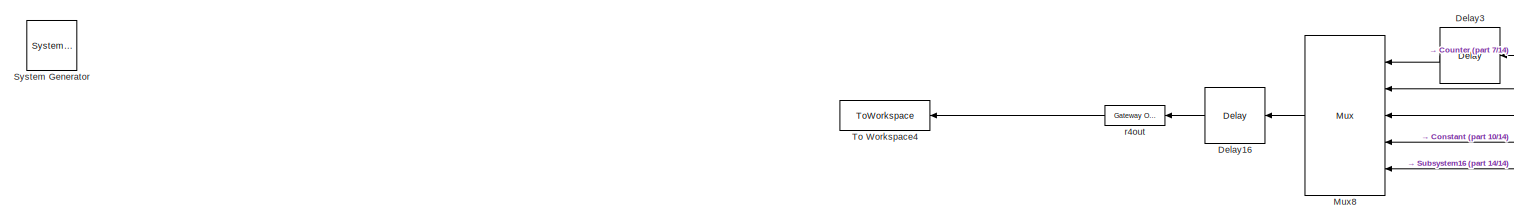
[diagram: root canvas - part 1/14, top center region]
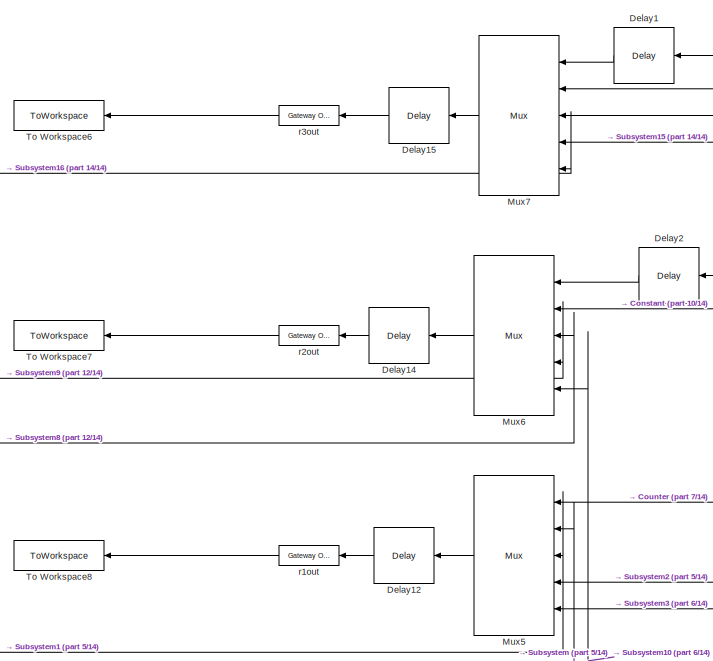
[diagram: root canvas - part 2/14, top center region]
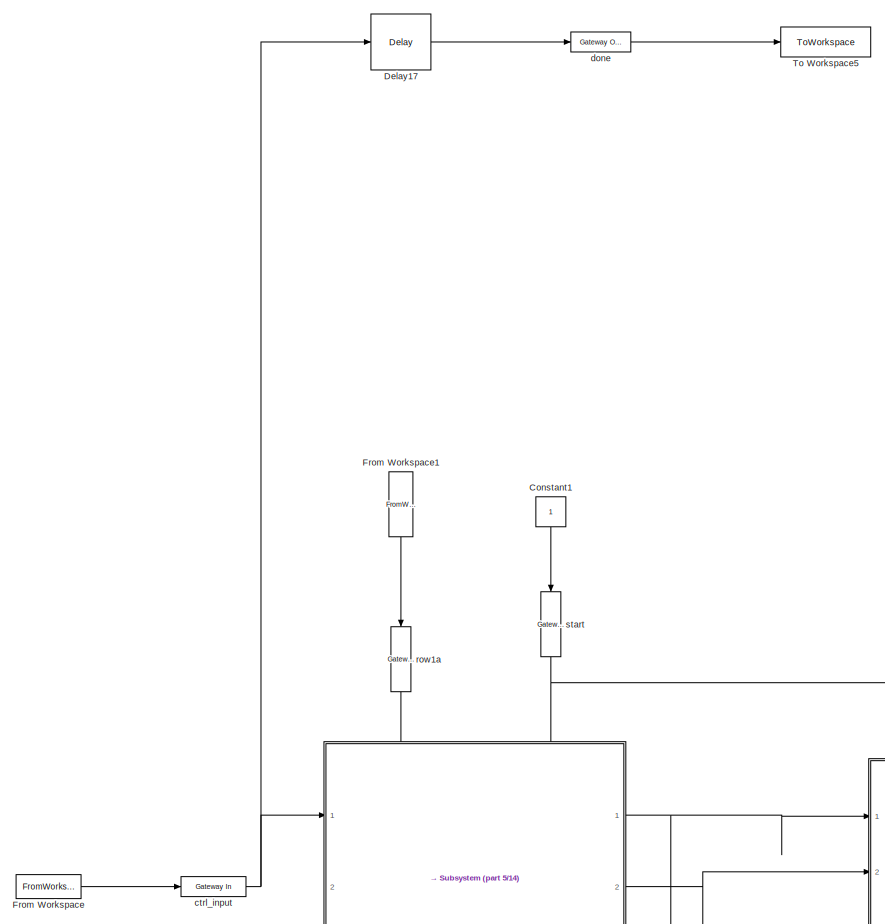
[diagram: root canvas - part 3/14, middle left region]
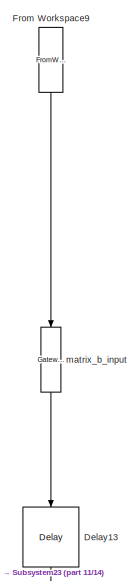
[diagram: root canvas - part 4/14, middle right region]
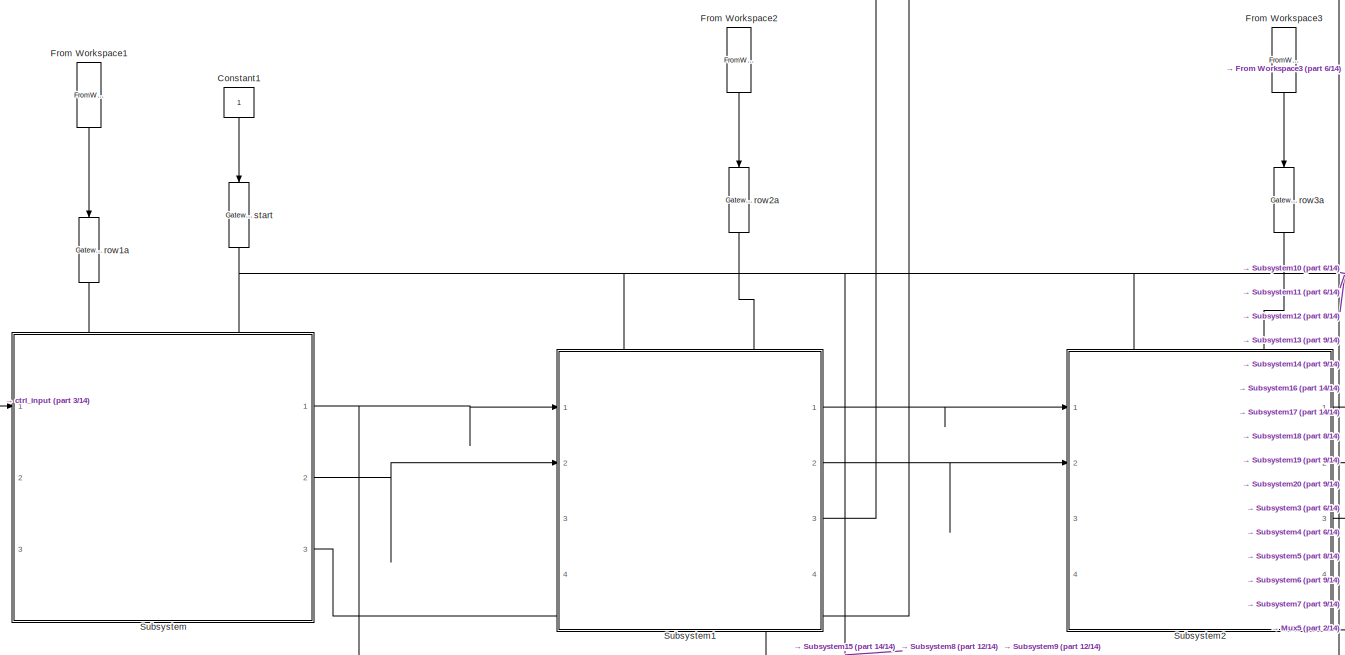
[diagram: root canvas - part 5/14, middle left region]
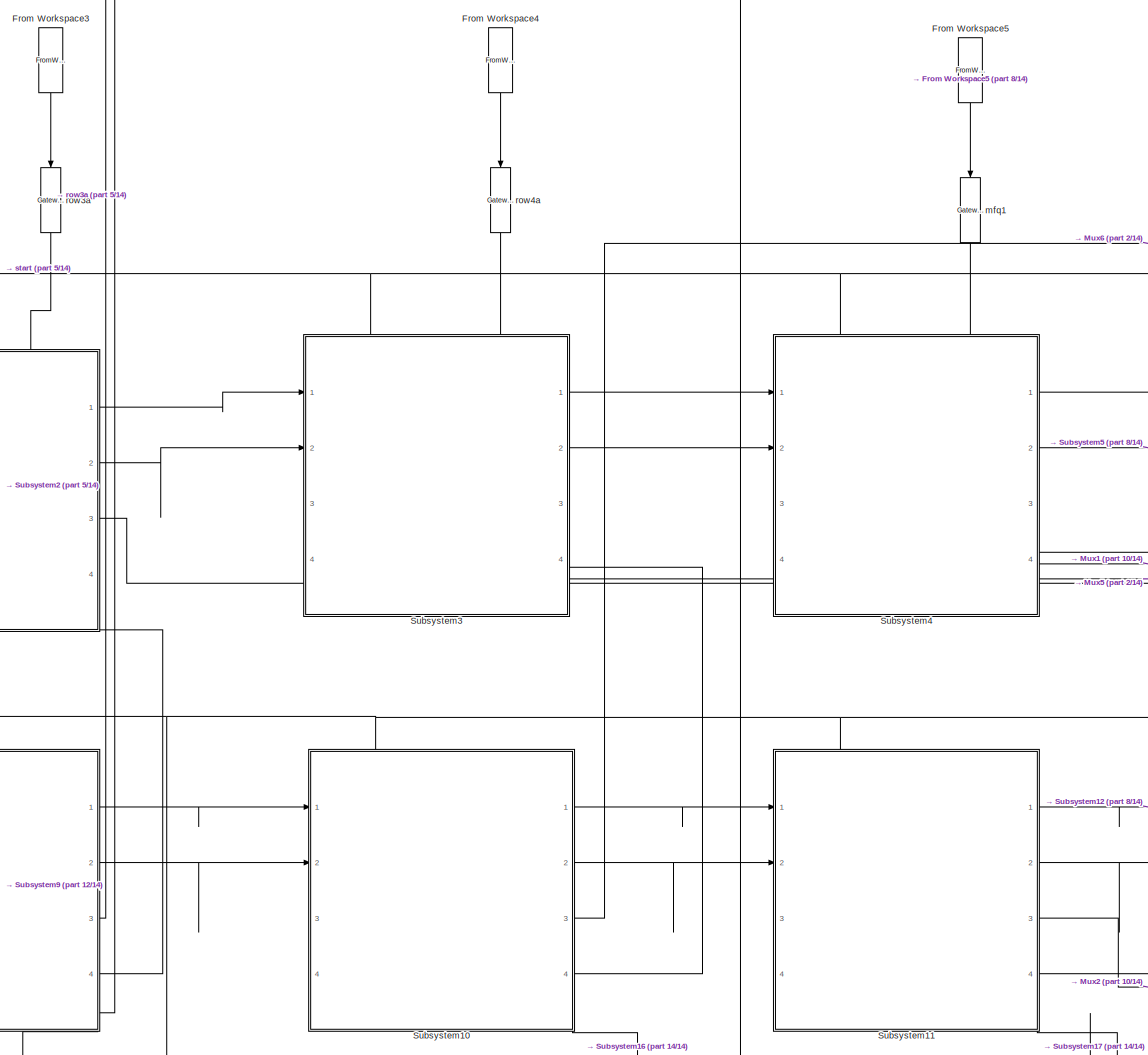
[diagram: root canvas - part 6/14, central region]
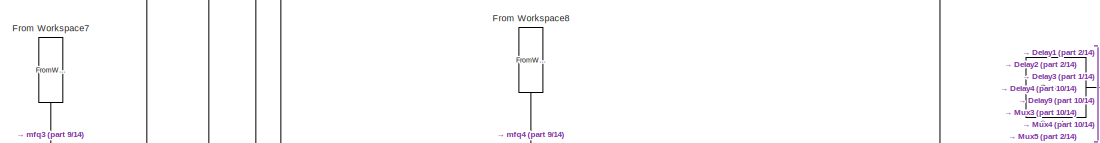
[diagram: root canvas - part 7/14, central region]
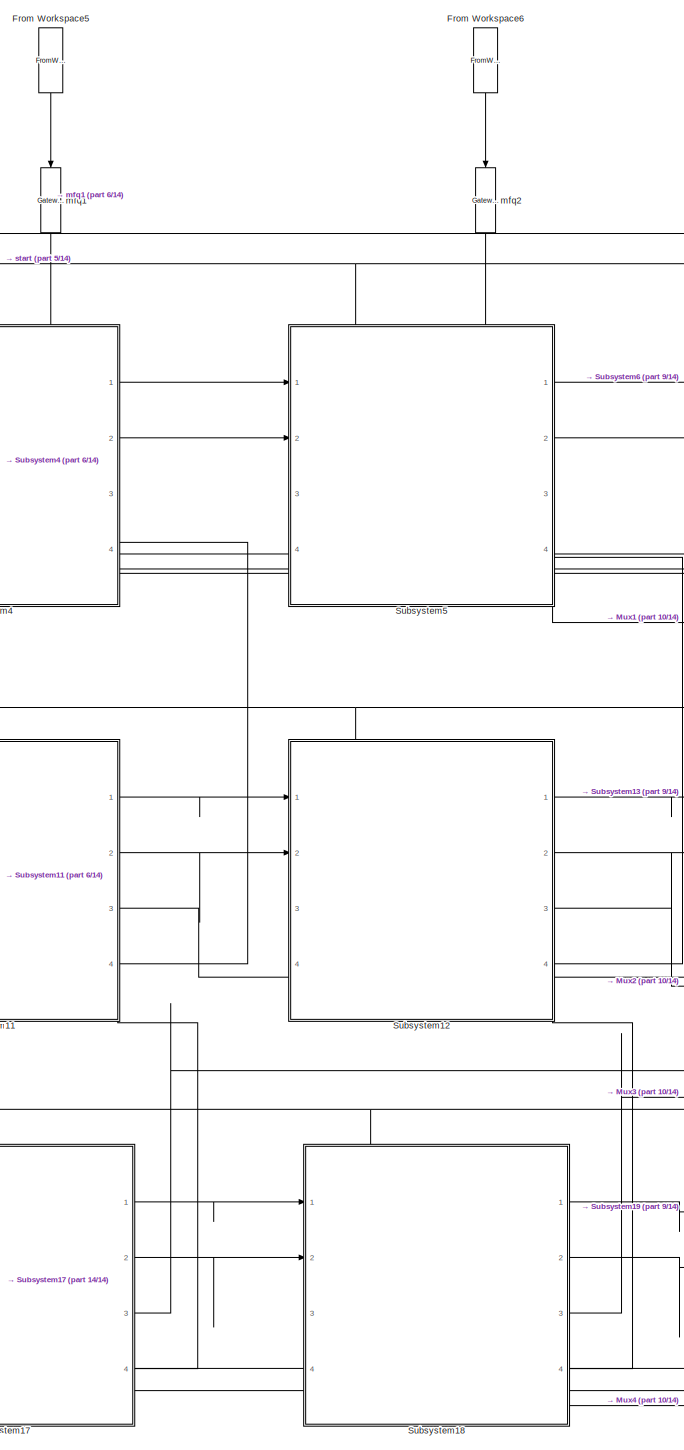
[diagram: root canvas - part 8/14, bottom center region]
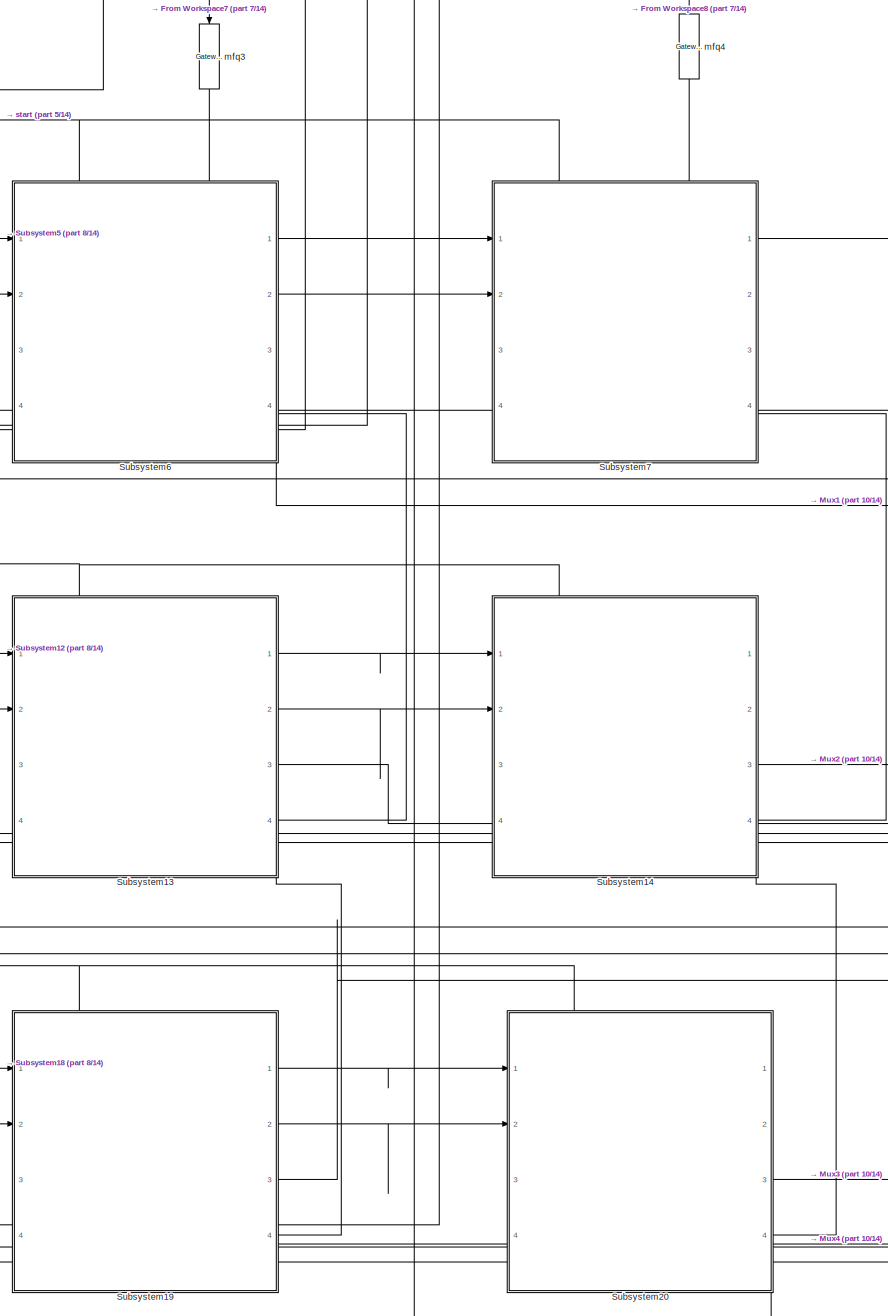
[diagram: root canvas - part 9/14, bottom center region]
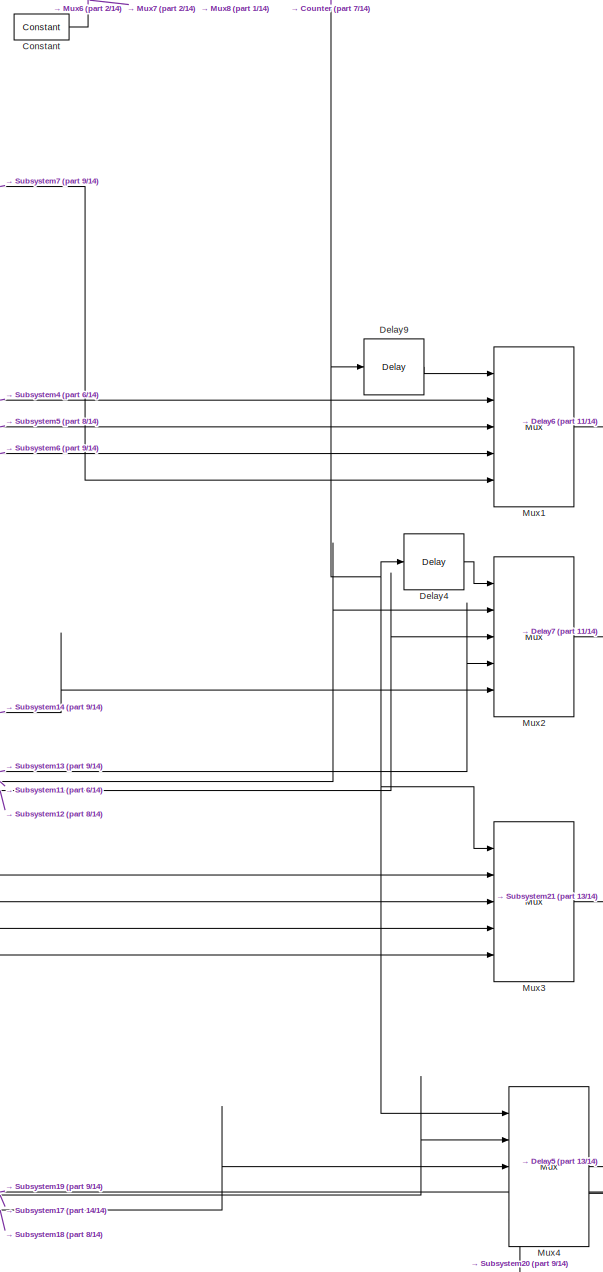
[diagram: root canvas - part 10/14, bottom right region]
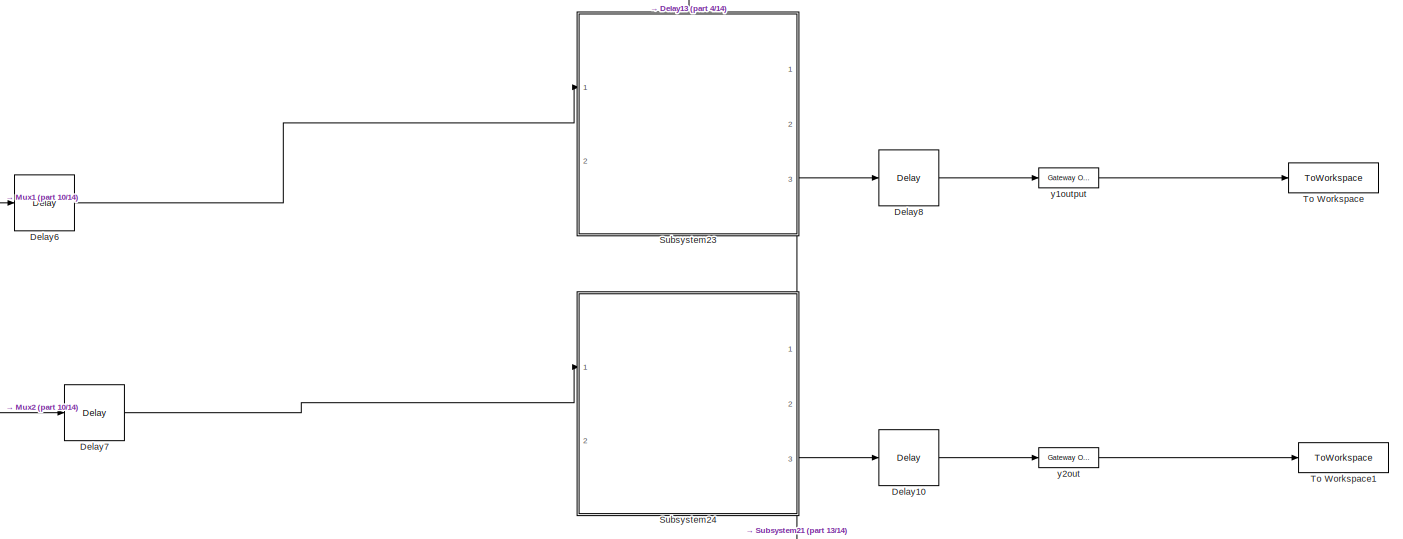
[diagram: root canvas - part 11/14, middle right region]
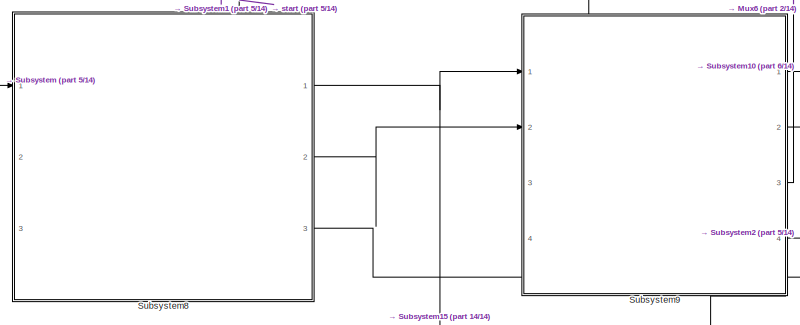
[diagram: root canvas - part 12/14, bottom left region]
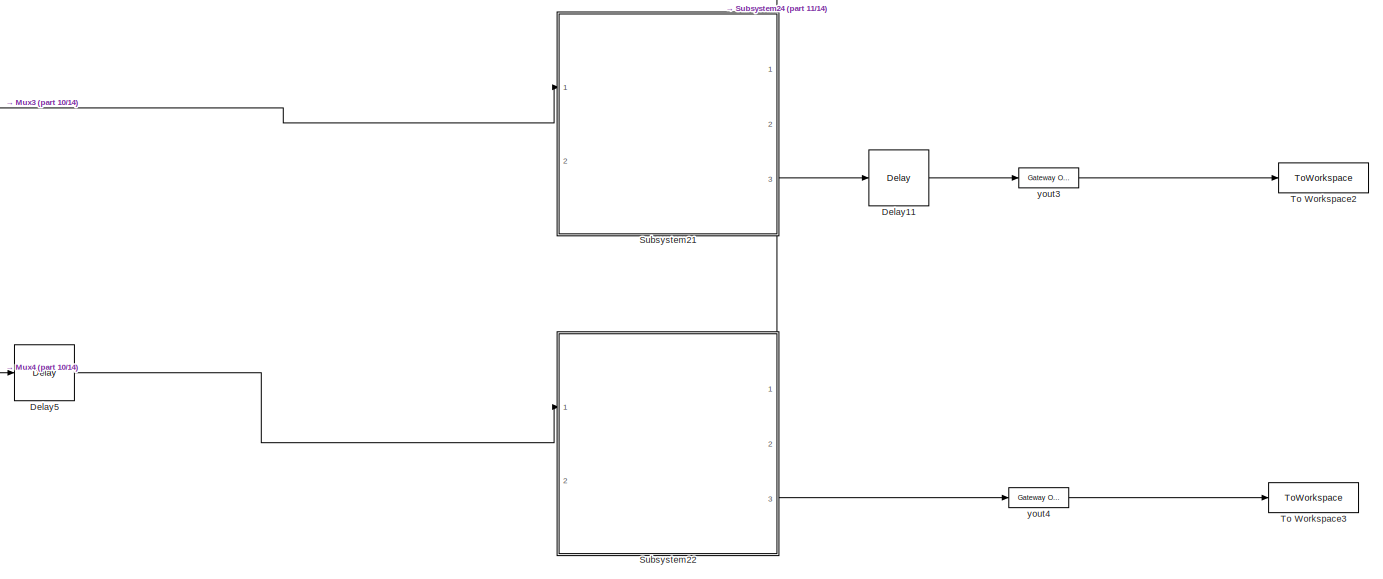
[diagram: root canvas - part 13/14, bottom right region]
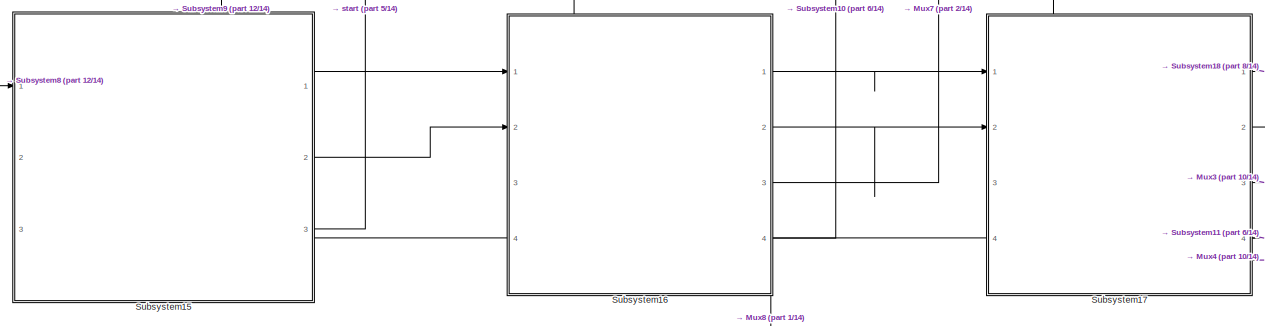
[diagram: root canvas - part 14/14, bottom left region]
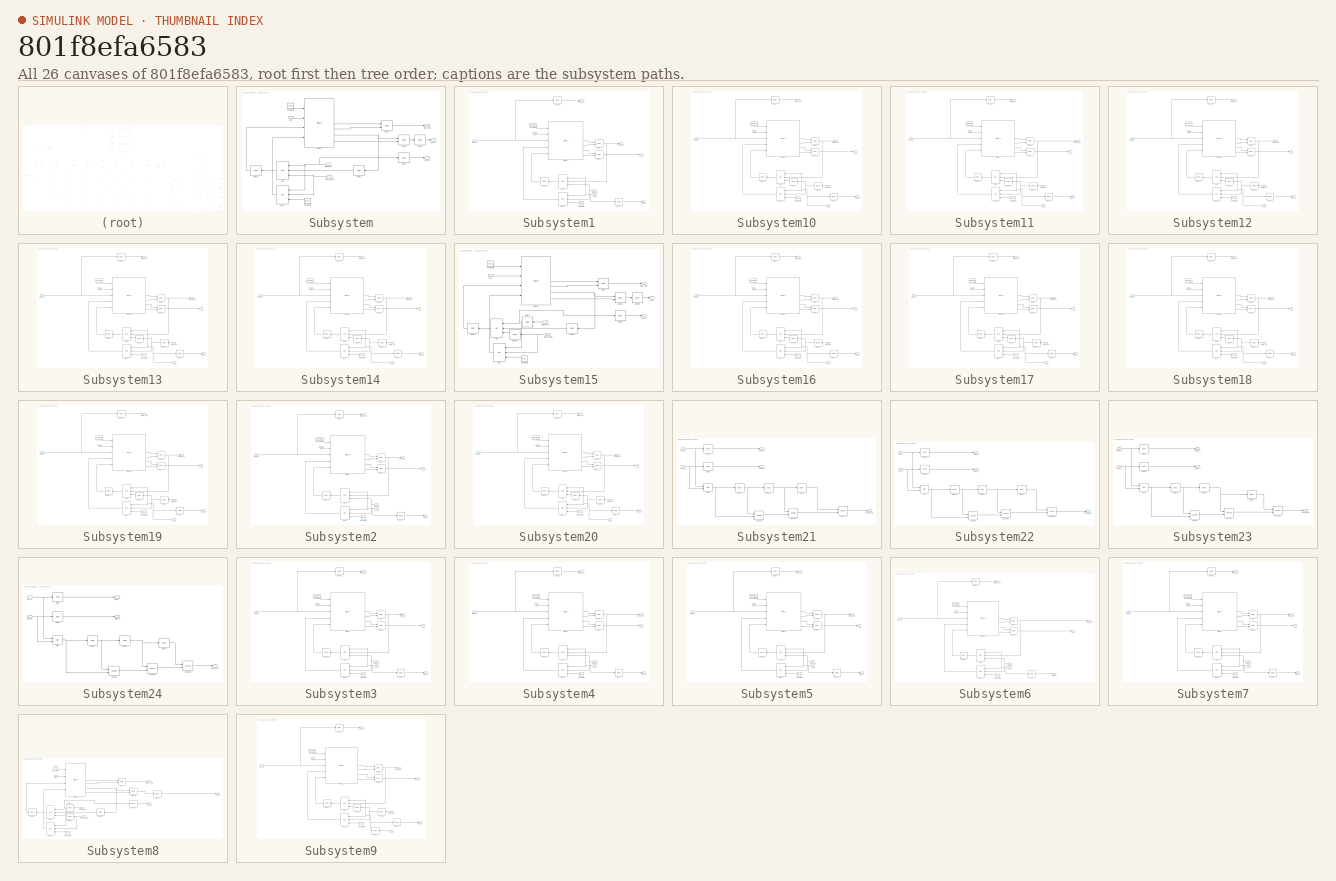
[diagram: thumbnail index - all 26 canvases of the model, root first then tree order]
MODEL slx_801f8efa6583
KIND model
CONFIG AbsTol = auto
CONFIG EnableMultiTasking = off
CONFIG FixedStep = auto
CONFIG MaxStep = auto
CONFIG MinStep = auto
CONFIG RelTol = 1e-3
CONFIG SampleTimeConstraint = Unconstrained
CONFIG SolverName = VariableStepAuto
CONFIG StartTime = 0.0
CONFIG StopTime = 350
BLOCK [Reference]  System Generator  REF=xbsIndex_r4/ System Generator
  AttributesFormatString = System\nGenerator
  NameLocation = right
  Ports = []
  SourceBlock = xbsIndex_r4/ System Generator
  SourceType = Xilinx System Generator Block
  Tag = genX
  UserDataPersistent = on
BLOCK [Reference] Constant  REF=hdlBasic/Constant
  Ports = [0, 1]
  SourceBlock = hdlBasic/Constant
  SourceType = Constant Block Block
BLOCK [Constant] Constant1
  NameLocation = left
BLOCK [Reference] Counter  REF=hdlBasic/Counter
  Ports = [0, 1]
  SourceBlock = hdlBasic/Counter
  SourceType = Counter Block
BLOCK [Reference] Delay1  REF=hdlBasic/Delay
  NameLocation = top
  Ports = [1, 1]
  SourceBlock = hdlBasic/Delay
  SourceType = Delay Block
BLOCK [Reference] Delay10  REF=hdlBasic/Delay
  Ports = [1, 1]
  SourceBlock = hdlBasic/Delay
  SourceType = Delay Block
BLOCK [Reference] Delay11  REF=hdlBasic/Delay
  Ports = [1, 1]
  SourceBlock = hdlBasic/Delay
  SourceType = Delay Block
BLOCK [Reference] Delay12  REF=hdlBasic/Delay
  NameLocation = top
  Ports = [1, 1]
  SourceBlock = hdlBasic/Delay
  SourceType = Delay Block
BLOCK [Reference] Delay13  REF=hdlBasic/Delay
  NameLocation = left
  Ports = [1, 1]
  SourceBlock = hdlBasic/Delay
  SourceType = Delay Block
BLOCK [Reference] Delay14  REF=hdlBasic/Delay
  NameLocation = top
  Ports = [1, 1]
  SourceBlock = hdlBasic/Delay
  SourceType = Delay Block
BLOCK [Reference] Delay15  REF=hdlBasic/Delay
  NameLocation = top
  Ports = [1, 1]
  SourceBlock = hdlBasic/Delay
  SourceType = Delay Block
BLOCK [Reference] Delay16  REF=hdlBasic/Delay
  NameLocation = top
  Ports = [1, 1]
  SourceBlock = hdlBasic/Delay
  SourceType = Delay Block
BLOCK [Reference] Delay17  REF=hdlBasic/Delay
  Ports = [1, 1]
  SourceBlock = hdlBasic/Delay
  SourceType = Delay Block
BLOCK [Reference] Delay2  REF=hdlBasic/Delay
  NameLocation = top
  Ports = [1, 1]
  SourceBlock = hdlBasic/Delay
  SourceType = Delay Block
BLOCK [Reference] Delay3  REF=hdlBasic/Delay
  NameLocation = top
  Ports = [1, 1]
  SourceBlock = hdlBasic/Delay
  SourceType = Delay Block
BLOCK [Reference] Delay4  REF=hdlBasic/Delay
  Ports = [1, 1]
  SourceBlock = hdlBasic/Delay
  SourceType = Delay Block
BLOCK [Reference] Delay5  REF=hdlBasic/Delay
  Ports = [1, 1]
  SourceBlock = hdlBasic/Delay
  SourceType = Delay Block
BLOCK [Reference] Delay6  REF=hdlBasic/Delay
  Ports = [1, 1]
  SourceBlock = hdlBasic/Delay
  SourceType = Delay Block
BLOCK [Reference] Delay7  REF=hdlBasic/Delay
  Ports = [1, 1]
  SourceBlock = hdlBasic/Delay
  SourceType = Delay Block
BLOCK [Reference] Delay8  REF=hdlBasic/Delay
  Ports = [1, 1]
  SourceBlock = hdlBasic/Delay
  SourceType = Delay Block
BLOCK [Reference] Delay9  REF=hdlBasic/Delay
  Ports = [1, 1]
  SourceBlock = hdlBasic/Delay
  SourceType = Delay Block
BLOCK [FromWorkspace] From Workspace
  VariableName = ctrl
BLOCK [FromWorkspace] From Workspace1
  NameLocation = left
  VariableName = Data
BLOCK [FromWorkspace] From Workspace2
  NameLocation = left
  VariableName = Data1
BLOCK [FromWorkspace] From Workspace3
  NameLocation = left
  VariableName = Data2
BLOCK [FromWorkspace] From Workspace4
  NameLocation = left
  VariableName = Data3
BLOCK [FromWorkspace] From Workspace5
  NameLocation = left
  VariableName = Data4
BLOCK [FromWorkspace] From Workspace6
  NameLocation = left
  VariableName = Data5
BLOCK [FromWorkspace] From Workspace7
  NameLocation = left
  VariableName = Data6
BLOCK [FromWorkspace] From Workspace8
  NameLocation = left
  VariableName = Data7
BLOCK [FromWorkspace] From Workspace9
  NameLocation = left
  VariableName = MatrixB
BLOCK [Reference] Mux1  REF=hdlBasic/Mux
  Ports = [5, 1]
  SourceBlock = hdlBasic/Mux
  SourceType = Bus Multiplexer Block
BLOCK [Reference] Mux2  REF=hdlBasic/Mux
  Ports = [5, 1]
  SourceBlock = hdlBasic/Mux
  SourceType = Bus Multiplexer Block
BLOCK [Reference] Mux3  REF=hdlBasic/Mux
  Ports = [5, 1]
  SourceBlock = hdlBasic/Mux
  SourceType = Bus Multiplexer Block
BLOCK [Reference] Mux4  REF=hdlBasic/Mux
  Ports = [5, 1]
  SourceBlock = hdlBasic/Mux
  SourceType = Bus Multiplexer Block
BLOCK [Reference] Mux5  REF=hdlBasic/Mux
  NameLocation = top
  Ports = [5, 1]
  SourceBlock = hdlBasic/Mux
  SourceType = Bus Multiplexer Block
BLOCK [Reference] Mux6  REF=hdlBasic/Mux
  NameLocation = top
  Ports = [5, 1]
  SourceBlock = hdlBasic/Mux
  SourceType = Bus Multiplexer Block
BLOCK [Reference] Mux7  REF=hdlBasic/Mux
  NameLocation = top
  Ports = [5, 1]
  SourceBlock = hdlBasic/Mux
  SourceType = Bus Multiplexer Block
BLOCK [Reference] Mux8  REF=hdlBasic/Mux
  NameLocation = top
  Ports = [5, 1]
  SourceBlock = hdlBasic/Mux
  SourceType = Bus Multiplexer Block
BLOCK [SubSystem] Subsystem
  PortSchema = {"entries":[{"content":{"sides":[{"content":{"connectorIds":["In1"]},"type":"ConnectorPlacement.EquallySpacedRectSide","uuid":"fe5f623d-d144-4f8e-98de-44dfac0974e6"},{"content":{"connectorIds":["Out1","Out2","Out3"],"side":"RIGHT"},"type":"ConnectorPlacement.EquallySpacedRectSide","uuid":"0cf9b770-e767-4ecf-99f1-fe0a98a8f26d"},{"content":{"connectorIds":["In2","In3"],"side":"TOP"},"type":"Connecto...<+265ch>
  Ports = [3, 3]
  RequestExecContextInheritance = off
BLOCK [Reference] Subsystem/Constant1  REF=hdlBasic/Constant
  Ports = [0, 1]
  SourceBlock = hdlBasic/Constant
  SourceType = Constant Block Block
BLOCK [Reference] Subsystem/Constant3  REF=hdlBasic/Constant
  NameLocation = top
  Ports = [0, 1]
  SourceBlock = hdlBasic/Constant
  SourceType = Constant Block Block
BLOCK [Outport] Subsystem/Ctrl_out
BLOCK [Reference] Subsystem/Delay1  REF=hdlBasic/Delay
  NameLocation = top
  Ports = [1, 1]
  SourceBlock = hdlBasic/Delay
  SourceType = Delay Block
BLOCK [Reference] Subsystem/Delay2  REF=hdlBasic/Delay
  NameLocation = top
  Ports = [1, 1]
  SourceBlock = hdlBasic/Delay
  SourceType = Delay Block
BLOCK [Reference] Subsystem/Delay3  REF=hdlBasic/Delay
  Ports = [1, 1]
  SourceBlock = hdlBasic/Delay
  SourceType = Delay Block
BLOCK [Reference] Subsystem/Delay4  REF=hdlBasic/Delay
  Ports = [2, 1]
  SourceBlock = hdlBasic/Delay
  SourceType = Delay Block
BLOCK [Reference] Subsystem/Delay5  REF=hdlBasic/Delay
  Ports = [2, 1]
  SourceBlock = hdlBasic/Delay
  SourceType = Delay Block
BLOCK [Reference] Subsystem/Delay6  REF=hdlBasic/Delay
  Ports = [1, 1]
  SourceBlock = hdlBasic/Delay
  SourceType = Delay Block
BLOCK [Reference] Subsystem/Mux  REF=hdlBasic/Mux
  NameLocation = top
  Ports = [3, 1]
  SourceBlock = hdlBasic/Mux
  SourceType = Bus Multiplexer Block
BLOCK [Reference] Subsystem/Mux1  REF=hdlBasic/Mux
  NameLocation = top
  Ports = [3, 1]
  SourceBlock = hdlBasic/Mux
  SourceType = Bus Multiplexer Block
BLOCK [Outport] Subsystem/R_out
  Port = 3
BLOCK [Inport] Subsystem/SIgnal_ctrl
  NameLocation = top
BLOCK [Inport] Subsystem/Signal_input1
  NameLocation = top
  Port = 2
BLOCK [Reference] Subsystem/Vitis HLS  REF=hdlBasic/Vitis HLS
  Ports = [4, 7]
  SourceBlock = hdlBasic/Vitis HLS
  SourceType = Xilinx High Level Synthesis Block
BLOCK [Outport] Subsystem/atan_out1
  Port = 2
BLOCK [Inport] Subsystem/start
  Port = 3
BLOCK [SubSystem] Subsystem1
  PortSchema = {"entries":[{"content":{"sides":[{"content":{"connectorIds":["In1","In2"]},"type":"ConnectorPlacement.EquallySpacedRectSide","uuid":"5a3478e8-8ee4-473b-b0f0-018ae3187083"},{"content":{"connectorIds":["Out1","Out2","Out3"],"side":"RIGHT"},"type":"ConnectorPlacement.EquallySpacedRectSide","uuid":"f4e5b144-cb36-459b-8cdf-06b3b447ab97"},{"content":{"connectorIds":["In3","In4"],"side":"TOP"},"type":"Co...<+421ch>  <repeated x13 — deduplicated; at blocks: Subsystem1, Subsystem10, Subsystem11, Subsystem12, Subsystem13, Subsystem14, Subsystem16, Subsystem17, Subsystem18, Subsystem19, Subsystem2, Subsystem20, Subsystem9>
  Ports = [4, 4]
  RequestExecContextInheritance = off
BLOCK [Reference] Subsystem1/Constant2  REF=hdlBasic/Constant
  Ports = [0, 1]
  SourceBlock = hdlBasic/Constant
  SourceType = Constant Block Block
BLOCK [Reference] Subsystem1/Constant6  REF=hdlBasic/Constant
  NameLocation = top
  Ports = [0, 1]
  SourceBlock = hdlBasic/Constant
  SourceType = Constant Block Block
BLOCK [Outport] Subsystem1/Ctrl_out
BLOCK [Inport] Subsystem1/Data_in2
  NameLocation = top
  Port = 4
BLOCK [Reference] Subsystem1/Delay  REF=hdlBasic/Delay
  Ports = [2, 1]
  SourceBlock = hdlBasic/Delay
  SourceType = Delay Block
BLOCK [Reference] Subsystem1/Delay1  REF=hdlBasic/Delay
  Ports = [2, 1]
  SourceBlock = hdlBasic/Delay
  SourceType = Delay Block
BLOCK [Reference] Subsystem1/Delay2  REF=hdlBasic/Delay
  NameLocation = top
  Ports = [1, 1]
  SourceBlock = hdlBasic/Delay
  SourceType = Delay Block
BLOCK [Reference] Subsystem1/Delay3  REF=hdlBasic/Delay
  Ports = [1, 1]
  SourceBlock = hdlBasic/Delay
  SourceType = Delay Block
BLOCK [Reference] Subsystem1/Delay4  REF=hdlBasic/Delay
  Ports = [1, 1]
  SourceBlock = hdlBasic/Delay
  SourceType = Delay Block
BLOCK [Reference] Subsystem1/Mux  REF=hdlBasic/Mux
  NameLocation = top
  Ports = [3, 1]
  SourceBlock = hdlBasic/Mux
  SourceType = Bus Multiplexer Block
BLOCK [Reference] Subsystem1/Mux1  REF=hdlBasic/Mux
  NameLocation = top
  Ports = [3, 1]
  SourceBlock = hdlBasic/Mux
  SourceType = Bus Multiplexer Block
BLOCK [Reference] Subsystem1/Vitis HLS  REF=hdlBasic/Vitis HLS
  Ports = [5, 7]
  SourceBlock = hdlBasic/Vitis HLS
  SourceType = Xilinx High Level Synthesis Block
BLOCK [Outport] Subsystem1/result_out
  Port = 3
BLOCK [Inport] Subsystem1/sel_in
BLOCK [Inport] Subsystem1/start
  Port = 3
BLOCK [Inport] Subsystem1/theta_in
  Port = 2
BLOCK [Outport] Subsystem1/theta_out
  Port = 2
BLOCK [Outport] Subsystem1/y_out
  Port = 4
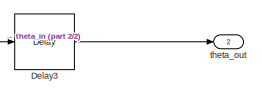
[diagram: Subsystem10 - part 1/2, top center region]
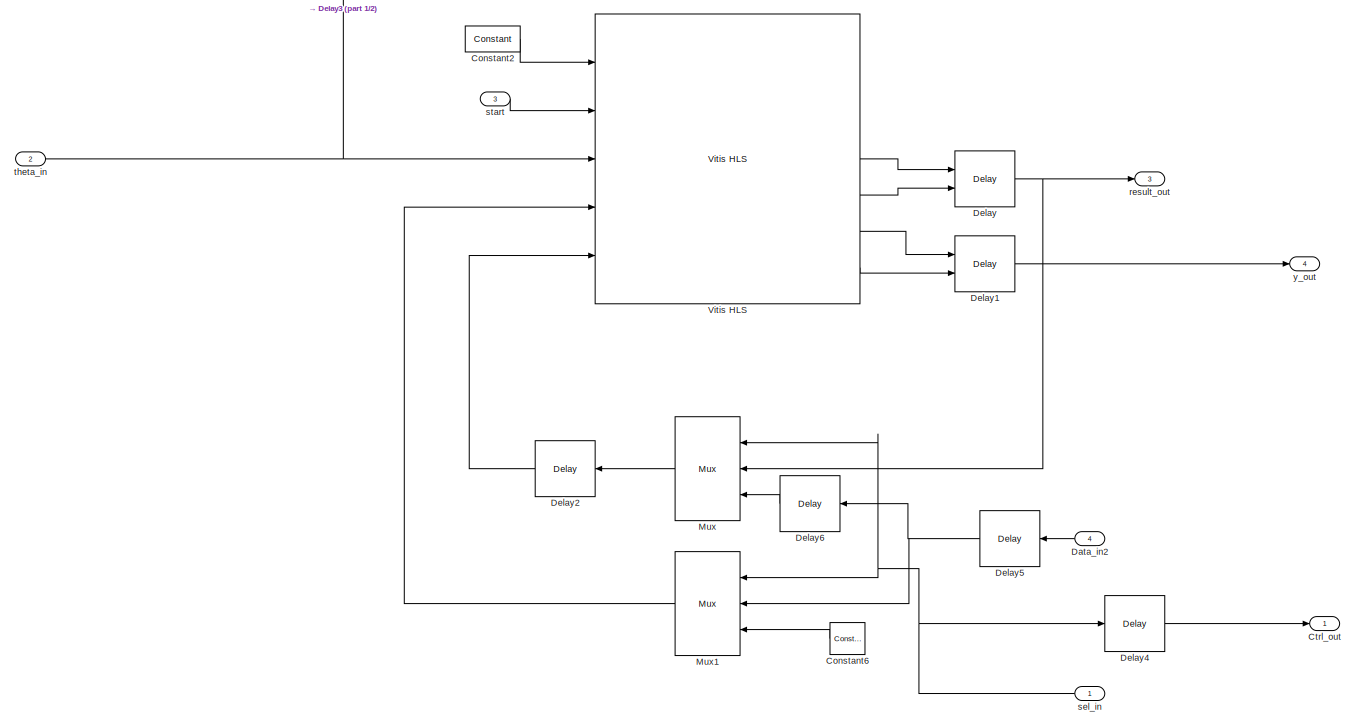
[diagram: Subsystem10 - part 2/2, most of the canvas]
BLOCK [SubSystem] Subsystem10
  Ports = [4, 4]
  RequestExecContextInheritance = off
BLOCK [Reference] Subsystem10/Constant2  REF=hdlBasic/Constant
  Ports = [0, 1]
  SourceBlock = hdlBasic/Constant
  SourceType = Constant Block Block
BLOCK [Reference] Subsystem10/Constant6  REF=hdlBasic/Constant
  NameLocation = top
  Ports = [0, 1]
  SourceBlock = hdlBasic/Constant
  SourceType = Constant Block Block
BLOCK [Outport] Subsystem10/Ctrl_out
BLOCK [Inport] Subsystem10/Data_in2
  NameLocation = top
  Port = 4
BLOCK [Reference] Subsystem10/Delay  REF=hdlBasic/Delay
  Ports = [2, 1]
  SourceBlock = hdlBasic/Delay
  SourceType = Delay Block
BLOCK [Reference] Subsystem10/Delay1  REF=hdlBasic/Delay
  Ports = [2, 1]
  SourceBlock = hdlBasic/Delay
  SourceType = Delay Block
BLOCK [Reference] Subsystem10/Delay2  REF=hdlBasic/Delay
  NameLocation = top
  Ports = [1, 1]
  SourceBlock = hdlBasic/Delay
  SourceType = Delay Block
BLOCK [Reference] Subsystem10/Delay3  REF=hdlBasic/Delay
  Ports = [1, 1]
  SourceBlock = hdlBasic/Delay
  SourceType = Delay Block
BLOCK [Reference] Subsystem10/Delay4  REF=hdlBasic/Delay
  Ports = [1, 1]
  SourceBlock = hdlBasic/Delay
  SourceType = Delay Block
BLOCK [Reference] Subsystem10/Delay5  REF=hdlBasic/Delay
  NameLocation = top
  Ports = [1, 1]
  SourceBlock = hdlBasic/Delay
  SourceType = Delay Block
BLOCK [Reference] Subsystem10/Delay6  REF=hdlBasic/Delay
  NameLocation = top
  Ports = [1, 1]
  SourceBlock = hdlBasic/Delay
  SourceType = Delay Block
BLOCK [Reference] Subsystem10/Mux  REF=hdlBasic/Mux
  NameLocation = top
  Ports = [3, 1]
  SourceBlock = hdlBasic/Mux
  SourceType = Bus Multiplexer Block
BLOCK [Reference] Subsystem10/Mux1  REF=hdlBasic/Mux
  NameLocation = top
  Ports = [3, 1]
  SourceBlock = hdlBasic/Mux
  SourceType = Bus Multiplexer Block
BLOCK [Reference] Subsystem10/Vitis HLS  REF=hdlBasic/Vitis HLS
  Ports = [5, 7]
  SourceBlock = hdlBasic/Vitis HLS
  SourceType = Xilinx High Level Synthesis Block
BLOCK [Outport] Subsystem10/result_out
  Port = 3
BLOCK [Inport] Subsystem10/sel_in
BLOCK [Inport] Subsystem10/start
  Port = 3
BLOCK [Inport] Subsystem10/theta_in
  Port = 2
BLOCK [Outport] Subsystem10/theta_out
  Port = 2
BLOCK [Outport] Subsystem10/y_out
  Port = 4
BLOCK [SubSystem] Subsystem11
  Ports = [4, 4]
  RequestExecContextInheritance = off
BLOCK [Reference] Subsystem11/Constant2  REF=hdlBasic/Constant
  Ports = [0, 1]
  SourceBlock = hdlBasic/Constant
  SourceType = Constant Block Block
BLOCK [Reference] Subsystem11/Constant6  REF=hdlBasic/Constant
  NameLocation = top
  Ports = [0, 1]
  SourceBlock = hdlBasic/Constant
  SourceType = Constant Block Block
BLOCK [Outport] Subsystem11/Ctrl_out
BLOCK [Inport] Subsystem11/Data_in2
  NameLocation = top
  Port = 4
BLOCK [Reference] Subsystem11/Delay  REF=hdlBasic/Delay
  Ports = [2, 1]
  SourceBlock = hdlBasic/Delay
  SourceType = Delay Block
BLOCK [Reference] Subsystem11/Delay1  REF=hdlBasic/Delay
  Ports = [2, 1]
  SourceBlock = hdlBasic/Delay
  SourceType = Delay Block
BLOCK [Reference] Subsystem11/Delay2  REF=hdlBasic/Delay
  NameLocation = top
  Ports = [1, 1]
  SourceBlock = hdlBasic/Delay
  SourceType = Delay Block
BLOCK [Reference] Subsystem11/Delay3  REF=hdlBasic/Delay
  Ports = [1, 1]
  SourceBlock = hdlBasic/Delay
  SourceType = Delay Block
BLOCK [Reference] Subsystem11/Delay4  REF=hdlBasic/Delay
  Ports = [1, 1]
  SourceBlock = hdlBasic/Delay
  SourceType = Delay Block
BLOCK [Reference] Subsystem11/Delay5  REF=hdlBasic/Delay
  NameLocation = top
  Ports = [1, 1]
  SourceBlock = hdlBasic/Delay
  SourceType = Delay Block
BLOCK [Reference] Subsystem11/Delay6  REF=hdlBasic/Delay
  NameLocation = top
  Ports = [1, 1]
  SourceBlock = hdlBasic/Delay
  SourceType = Delay Block
BLOCK [Reference] Subsystem11/Mux  REF=hdlBasic/Mux
  NameLocation = top
  Ports = [3, 1]
  SourceBlock = hdlBasic/Mux
  SourceType = Bus Multiplexer Block
BLOCK [Reference] Subsystem11/Mux1  REF=hdlBasic/Mux
  NameLocation = top
  Ports = [3, 1]
  SourceBlock = hdlBasic/Mux
  SourceType = Bus Multiplexer Block
BLOCK [Reference] Subsystem11/Vitis HLS  REF=hdlBasic/Vitis HLS
  Ports = [5, 7]
  SourceBlock = hdlBasic/Vitis HLS
  SourceType = Xilinx High Level Synthesis Block
BLOCK [Outport] Subsystem11/result_out
  Port = 3
BLOCK [Inport] Subsystem11/sel_in
BLOCK [Inport] Subsystem11/start
  Port = 3
BLOCK [Inport] Subsystem11/theta_in
  Port = 2
BLOCK [Outport] Subsystem11/theta_out
  Port = 2
BLOCK [Outport] Subsystem11/y_out
  Port = 4
BLOCK [SubSystem] Subsystem12
  Ports = [4, 4]
  RequestExecContextInheritance = off
BLOCK [Reference] Subsystem12/Constant2  REF=hdlBasic/Constant
  Ports = [0, 1]
  SourceBlock = hdlBasic/Constant
  SourceType = Constant Block Block
BLOCK [Reference] Subsystem12/Constant6  REF=hdlBasic/Constant
  NameLocation = top
  Ports = [0, 1]
  SourceBlock = hdlBasic/Constant
  SourceType = Constant Block Block
BLOCK [Outport] Subsystem12/Ctrl_out
BLOCK [Inport] Subsystem12/Data_in2
  NameLocation = top
  Port = 4
BLOCK [Reference] Subsystem12/Delay  REF=hdlBasic/Delay
  Ports = [2, 1]
  SourceBlock = hdlBasic/Delay
  SourceType = Delay Block
BLOCK [Reference] Subsystem12/Delay1  REF=hdlBasic/Delay
  Ports = [2, 1]
  SourceBlock = hdlBasic/Delay
  SourceType = Delay Block
BLOCK [Reference] Subsystem12/Delay2  REF=hdlBasic/Delay
  NameLocation = top
  Ports = [1, 1]
  SourceBlock = hdlBasic/Delay
  SourceType = Delay Block
BLOCK [Reference] Subsystem12/Delay3  REF=hdlBasic/Delay
  Ports = [1, 1]
  SourceBlock = hdlBasic/Delay
  SourceType = Delay Block
BLOCK [Reference] Subsystem12/Delay4  REF=hdlBasic/Delay
  Ports = [1, 1]
  SourceBlock = hdlBasic/Delay
  SourceType = Delay Block
BLOCK [Reference] Subsystem12/Delay5  REF=hdlBasic/Delay
  NameLocation = top
  Ports = [1, 1]
  SourceBlock = hdlBasic/Delay
  SourceType = Delay Block
BLOCK [Reference] Subsystem12/Delay6  REF=hdlBasic/Delay
  NameLocation = top
  Ports = [1, 1]
  SourceBlock = hdlBasic/Delay
  SourceType = Delay Block
BLOCK [Reference] Subsystem12/Mux  REF=hdlBasic/Mux
  NameLocation = top
  Ports = [3, 1]
  SourceBlock = hdlBasic/Mux
  SourceType = Bus Multiplexer Block
BLOCK [Reference] Subsystem12/Mux1  REF=hdlBasic/Mux
  NameLocation = top
  Ports = [3, 1]
  SourceBlock = hdlBasic/Mux
  SourceType = Bus Multiplexer Block
BLOCK [Reference] Subsystem12/Vitis HLS  REF=hdlBasic/Vitis HLS
  Ports = [5, 7]
  SourceBlock = hdlBasic/Vitis HLS
  SourceType = Xilinx High Level Synthesis Block
BLOCK [Outport] Subsystem12/result_out
  Port = 3
BLOCK [Inport] Subsystem12/sel_in
BLOCK [Inport] Subsystem12/start
  Port = 3
BLOCK [Inport] Subsystem12/theta_in
  Port = 2
BLOCK [Outport] Subsystem12/theta_out
  Port = 2
BLOCK [Outport] Subsystem12/y_out
  Port = 4
BLOCK [SubSystem] Subsystem13
  Ports = [4, 4]
  RequestExecContextInheritance = off
BLOCK [Reference] Subsystem13/Constant2  REF=hdlBasic/Constant
  Ports = [0, 1]
  SourceBlock = hdlBasic/Constant
  SourceType = Constant Block Block
BLOCK [Reference] Subsystem13/Constant6  REF=hdlBasic/Constant
  NameLocation = top
  Ports = [0, 1]
  SourceBlock = hdlBasic/Constant
  SourceType = Constant Block Block
BLOCK [Outport] Subsystem13/Ctrl_out
BLOCK [Inport] Subsystem13/Data_in2
  NameLocation = top
  Port = 4
BLOCK [Reference] Subsystem13/Delay  REF=hdlBasic/Delay
  Ports = [2, 1]
  SourceBlock = hdlBasic/Delay
  SourceType = Delay Block
BLOCK [Reference] Subsystem13/Delay1  REF=hdlBasic/Delay
  Ports = [2, 1]
  SourceBlock = hdlBasic/Delay
  SourceType = Delay Block
BLOCK [Reference] Subsystem13/Delay2  REF=hdlBasic/Delay
  NameLocation = top
  Ports = [1, 1]
  SourceBlock = hdlBasic/Delay
  SourceType = Delay Block
BLOCK [Reference] Subsystem13/Delay3  REF=hdlBasic/Delay
  Ports = [1, 1]
  SourceBlock = hdlBasic/Delay
  SourceType = Delay Block
BLOCK [Reference] Subsystem13/Delay4  REF=hdlBasic/Delay
  Ports = [1, 1]
  SourceBlock = hdlBasic/Delay
  SourceType = Delay Block
BLOCK [Reference] Subsystem13/Delay5  REF=hdlBasic/Delay
  NameLocation = top
  Ports = [1, 1]
  SourceBlock = hdlBasic/Delay
  SourceType = Delay Block
BLOCK [Reference] Subsystem13/Delay6  REF=hdlBasic/Delay
  NameLocation = top
  Ports = [1, 1]
  SourceBlock = hdlBasic/Delay
  SourceType = Delay Block
BLOCK [Reference] Subsystem13/Mux  REF=hdlBasic/Mux
  NameLocation = top
  Ports = [3, 1]
  SourceBlock = hdlBasic/Mux
  SourceType = Bus Multiplexer Block
BLOCK [Reference] Subsystem13/Mux1  REF=hdlBasic/Mux
  NameLocation = top
  Ports = [3, 1]
  SourceBlock = hdlBasic/Mux
  SourceType = Bus Multiplexer Block
BLOCK [Reference] Subsystem13/Vitis HLS  REF=hdlBasic/Vitis HLS
  Ports = [5, 7]
  SourceBlock = hdlBasic/Vitis HLS
  SourceType = Xilinx High Level Synthesis Block
BLOCK [Outport] Subsystem13/result_out
  Port = 3
BLOCK [Inport] Subsystem13/sel_in
BLOCK [Inport] Subsystem13/start
  Port = 3
BLOCK [Inport] Subsystem13/theta_in
  Port = 2
BLOCK [Outport] Subsystem13/theta_out
  Port = 2
BLOCK [Outport] Subsystem13/y_out
  Port = 4
BLOCK [SubSystem] Subsystem14
  Ports = [4, 4]
  RequestExecContextInheritance = off
BLOCK [Reference] Subsystem14/Constant2  REF=hdlBasic/Constant
  Ports = [0, 1]
  SourceBlock = hdlBasic/Constant
  SourceType = Constant Block Block
BLOCK [Reference] Subsystem14/Constant6  REF=hdlBasic/Constant
  NameLocation = top
  Ports = [0, 1]
  SourceBlock = hdlBasic/Constant
  SourceType = Constant Block Block
BLOCK [Outport] Subsystem14/Ctrl_out
BLOCK [Inport] Subsystem14/Data_in2
  NameLocation = top
  Port = 4
BLOCK [Reference] Subsystem14/Delay  REF=hdlBasic/Delay
  Ports = [2, 1]
  SourceBlock = hdlBasic/Delay
  SourceType = Delay Block
BLOCK [Reference] Subsystem14/Delay1  REF=hdlBasic/Delay
  Ports = [2, 1]
  SourceBlock = hdlBasic/Delay
  SourceType = Delay Block
BLOCK [Reference] Subsystem14/Delay2  REF=hdlBasic/Delay
  NameLocation = top
  Ports = [1, 1]
  SourceBlock = hdlBasic/Delay
  SourceType = Delay Block
BLOCK [Reference] Subsystem14/Delay3  REF=hdlBasic/Delay
  Ports = [1, 1]
  SourceBlock = hdlBasic/Delay
  SourceType = Delay Block
BLOCK [Reference] Subsystem14/Delay4  REF=hdlBasic/Delay
  Ports = [1, 1]
  SourceBlock = hdlBasic/Delay
  SourceType = Delay Block
BLOCK [Reference] Subsystem14/Delay5  REF=hdlBasic/Delay
  NameLocation = top
  Ports = [1, 1]
  SourceBlock = hdlBasic/Delay
  SourceType = Delay Block
BLOCK [Reference] Subsystem14/Delay6  REF=hdlBasic/Delay
  NameLocation = top
  Ports = [1, 1]
  SourceBlock = hdlBasic/Delay
  SourceType = Delay Block
BLOCK [Reference] Subsystem14/Mux  REF=hdlBasic/Mux
  NameLocation = top
  Ports = [3, 1]
  SourceBlock = hdlBasic/Mux
  SourceType = Bus Multiplexer Block
BLOCK [Reference] Subsystem14/Mux1  REF=hdlBasic/Mux
  NameLocation = top
  Ports = [3, 1]
  SourceBlock = hdlBasic/Mux
  SourceType = Bus Multiplexer Block
BLOCK [Reference] Subsystem14/Vitis HLS  REF=hdlBasic/Vitis HLS
  Ports = [5, 7]
  SourceBlock = hdlBasic/Vitis HLS
  SourceType = Xilinx High Level Synthesis Block
BLOCK [Outport] Subsystem14/result_out
  Port = 3
BLOCK [Inport] Subsystem14/sel_in
BLOCK [Inport] Subsystem14/start
  Port = 3
BLOCK [Inport] Subsystem14/theta_in
  Port = 2
BLOCK [Outport] Subsystem14/theta_out
  Port = 2
BLOCK [Outport] Subsystem14/y_out
  Port = 4
BLOCK [SubSystem] Subsystem15
  PortSchema = {"entries":[{"content":{"sides":[{"content":{"connectorIds":["In1"]},"type":"ConnectorPlacement.EquallySpacedRectSide","uuid":"fe5f623d-d144-4f8e-98de-44dfac0974e6"},{"content":{"connectorIds":["Out1","Out2"],"side":"RIGHT"},"type":"ConnectorPlacement.EquallySpacedRectSide","uuid":"0cf9b770-e767-4ecf-99f1-fe0a98a8f26d"},{"content":{"connectorIds":["In2","In3"],"side":"TOP"},"type":"ConnectorPlacem...<+408ch>
  Ports = [3, 3]
  RequestExecContextInheritance = off
BLOCK [Reference] Subsystem15/Constant1  REF=hdlBasic/Constant
  Ports = [0, 1]
  SourceBlock = hdlBasic/Constant
  SourceType = Constant Block Block
BLOCK [Reference] Subsystem15/Constant3  REF=hdlBasic/Constant
  NameLocation = top
  Ports = [0, 1]
  SourceBlock = hdlBasic/Constant
  SourceType = Constant Block Block
BLOCK [Outport] Subsystem15/Ctrl_out
BLOCK [Reference] Subsystem15/Delay1  REF=hdlBasic/Delay
  NameLocation = top
  Ports = [1, 1]
  SourceBlock = hdlBasic/Delay
  SourceType = Delay Block
BLOCK [Reference] Subsystem15/Delay2  REF=hdlBasic/Delay
  NameLocation = top
  Ports = [1, 1]
  SourceBlock = hdlBasic/Delay
  SourceType = Delay Block
BLOCK [Reference] Subsystem15/Delay3  REF=hdlBasic/Delay
  Ports = [1, 1]
  SourceBlock = hdlBasic/Delay
  SourceType = Delay Block
BLOCK [Reference] Subsystem15/Delay4  REF=hdlBasic/Delay
  Ports = [2, 1]
  SourceBlock = hdlBasic/Delay
  SourceType = Delay Block
BLOCK [Reference] Subsystem15/Delay5  REF=hdlBasic/Delay
  Ports = [2, 1]
  SourceBlock = hdlBasic/Delay
  SourceType = Delay Block
BLOCK [Reference] Subsystem15/Delay6  REF=hdlBasic/Delay
  NameLocation = top
  Ports = [1, 1]
  SourceBlock = hdlBasic/Delay
  SourceType = Delay Block
BLOCK [Reference] Subsystem15/Delay7  REF=hdlBasic/Delay
  NameLocation = top
  Ports = [1, 1]
  SourceBlock = hdlBasic/Delay
  SourceType = Delay Block
BLOCK [Reference] Subsystem15/Delay8  REF=hdlBasic/Delay
  Ports = [1, 1]
  SourceBlock = hdlBasic/Delay
  SourceType = Delay Block
BLOCK [Reference] Subsystem15/Mux  REF=hdlBasic/Mux
  NameLocation = top
  Ports = [3, 1]
  SourceBlock = hdlBasic/Mux
  SourceType = Bus Multiplexer Block
BLOCK [Reference] Subsystem15/Mux1  REF=hdlBasic/Mux
  NameLocation = top
  Ports = [3, 1]
  SourceBlock = hdlBasic/Mux
  SourceType = Bus Multiplexer Block
BLOCK [Outport] Subsystem15/R_out
  Port = 3
BLOCK [Inport] Subsystem15/SIgnal_ctrl
  NameLocation = top
BLOCK [Inport] Subsystem15/Signal_input1
  NameLocation = top
  Port = 2
BLOCK [Reference] Subsystem15/Vitis HLS  REF=hdlBasic/Vitis HLS
  Ports = [4, 7]
  SourceBlock = hdlBasic/Vitis HLS
  SourceType = Xilinx High Level Synthesis Block
BLOCK [Outport] Subsystem15/atan_out1
  Port = 2
BLOCK [Inport] Subsystem15/start
  Port = 3
BLOCK [SubSystem] Subsystem16
  Ports = [4, 4]
  RequestExecContextInheritance = off
BLOCK [Reference] Subsystem16/Constant2  REF=hdlBasic/Constant
  Ports = [0, 1]
  SourceBlock = hdlBasic/Constant
  SourceType = Constant Block Block
BLOCK [Reference] Subsystem16/Constant6  REF=hdlBasic/Constant
  NameLocation = top
  Ports = [0, 1]
  SourceBlock = hdlBasic/Constant
  SourceType = Constant Block Block
BLOCK [Outport] Subsystem16/Ctrl_out
BLOCK [Inport] Subsystem16/Data_in2
  NameLocation = top
  Port = 4
BLOCK [Reference] Subsystem16/Delay  REF=hdlBasic/Delay
  Ports = [2, 1]
  SourceBlock = hdlBasic/Delay
  SourceType = Delay Block
BLOCK [Reference] Subsystem16/Delay1  REF=hdlBasic/Delay
  Ports = [2, 1]
  SourceBlock = hdlBasic/Delay
  SourceType = Delay Block
BLOCK [Reference] Subsystem16/Delay2  REF=hdlBasic/Delay
  NameLocation = top
  Ports = [1, 1]
  SourceBlock = hdlBasic/Delay
  SourceType = Delay Block
BLOCK [Reference] Subsystem16/Delay3  REF=hdlBasic/Delay
  Ports = [1, 1]
  SourceBlock = hdlBasic/Delay
  SourceType = Delay Block
BLOCK [Reference] Subsystem16/Delay4  REF=hdlBasic/Delay
  Ports = [1, 1]
  SourceBlock = hdlBasic/Delay
  SourceType = Delay Block
BLOCK [Reference] Subsystem16/Delay5  REF=hdlBasic/Delay
  NameLocation = top
  Ports = [1, 1]
  SourceBlock = hdlBasic/Delay
  SourceType = Delay Block
BLOCK [Reference] Subsystem16/Delay6  REF=hdlBasic/Delay
  NameLocation = top
  Ports = [1, 1]
  SourceBlock = hdlBasic/Delay
  SourceType = Delay Block
BLOCK [Reference] Subsystem16/Mux  REF=hdlBasic/Mux
  NameLocation = top
  Ports = [3, 1]
  SourceBlock = hdlBasic/Mux
  SourceType = Bus Multiplexer Block
BLOCK [Reference] Subsystem16/Mux1  REF=hdlBasic/Mux
  NameLocation = top
  Ports = [3, 1]
  SourceBlock = hdlBasic/Mux
  SourceType = Bus Multiplexer Block
BLOCK [Reference] Subsystem16/Vitis HLS  REF=hdlBasic/Vitis HLS
  Ports = [5, 7]
  SourceBlock = hdlBasic/Vitis HLS
  SourceType = Xilinx High Level Synthesis Block
BLOCK [Outport] Subsystem16/result_out
  Port = 3
BLOCK [Inport] Subsystem16/sel_in
BLOCK [Inport] Subsystem16/start
  Port = 3
BLOCK [Inport] Subsystem16/theta_in
  Port = 2
BLOCK [Outport] Subsystem16/theta_out
  Port = 2
BLOCK [Outport] Subsystem16/y_out
  Port = 4
BLOCK [SubSystem] Subsystem17
  Ports = [4, 4]
  RequestExecContextInheritance = off
BLOCK [Reference] Subsystem17/Constant2  REF=hdlBasic/Constant
  Ports = [0, 1]
  SourceBlock = hdlBasic/Constant
  SourceType = Constant Block Block
BLOCK [Reference] Subsystem17/Constant6  REF=hdlBasic/Constant
  NameLocation = top
  Ports = [0, 1]
  SourceBlock = hdlBasic/Constant
  SourceType = Constant Block Block
BLOCK [Outport] Subsystem17/Ctrl_out
BLOCK [Inport] Subsystem17/Data_in2
  NameLocation = top
  Port = 4
BLOCK [Reference] Subsystem17/Delay  REF=hdlBasic/Delay
  Ports = [2, 1]
  SourceBlock = hdlBasic/Delay
  SourceType = Delay Block
BLOCK [Reference] Subsystem17/Delay1  REF=hdlBasic/Delay
  Ports = [2, 1]
  SourceBlock = hdlBasic/Delay
  SourceType = Delay Block
BLOCK [Reference] Subsystem17/Delay2  REF=hdlBasic/Delay
  NameLocation = top
  Ports = [1, 1]
  SourceBlock = hdlBasic/Delay
  SourceType = Delay Block
BLOCK [Reference] Subsystem17/Delay3  REF=hdlBasic/Delay
  Ports = [1, 1]
  SourceBlock = hdlBasic/Delay
  SourceType = Delay Block
BLOCK [Reference] Subsystem17/Delay4  REF=hdlBasic/Delay
  Ports = [1, 1]
  SourceBlock = hdlBasic/Delay
  SourceType = Delay Block
BLOCK [Reference] Subsystem17/Delay5  REF=hdlBasic/Delay
  NameLocation = top
  Ports = [1, 1]
  SourceBlock = hdlBasic/Delay
  SourceType = Delay Block
BLOCK [Reference] Subsystem17/Delay6  REF=hdlBasic/Delay
  NameLocation = top
  Ports = [1, 1]
  SourceBlock = hdlBasic/Delay
  SourceType = Delay Block
BLOCK [Reference] Subsystem17/Mux  REF=hdlBasic/Mux
  NameLocation = top
  Ports = [3, 1]
  SourceBlock = hdlBasic/Mux
  SourceType = Bus Multiplexer Block
BLOCK [Reference] Subsystem17/Mux1  REF=hdlBasic/Mux
  NameLocation = top
  Ports = [3, 1]
  SourceBlock = hdlBasic/Mux
  SourceType = Bus Multiplexer Block
BLOCK [Reference] Subsystem17/Vitis HLS  REF=hdlBasic/Vitis HLS
  Ports = [5, 7]
  SourceBlock = hdlBasic/Vitis HLS
  SourceType = Xilinx High Level Synthesis Block
BLOCK [Outport] Subsystem17/result_out
  Port = 3
BLOCK [Inport] Subsystem17/sel_in
BLOCK [Inport] Subsystem17/start
  Port = 3
BLOCK [Inport] Subsystem17/theta_in
  Port = 2
BLOCK [Outport] Subsystem17/theta_out
  Port = 2
BLOCK [Outport] Subsystem17/y_out
  Port = 4
BLOCK [SubSystem] Subsystem18
  Ports = [4, 4]
  RequestExecContextInheritance = off
BLOCK [Reference] Subsystem18/Constant2  REF=hdlBasic/Constant
  Ports = [0, 1]
  SourceBlock = hdlBasic/Constant
  SourceType = Constant Block Block
BLOCK [Reference] Subsystem18/Constant6  REF=hdlBasic/Constant
  NameLocation = top
  Ports = [0, 1]
  SourceBlock = hdlBasic/Constant
  SourceType = Constant Block Block
BLOCK [Outport] Subsystem18/Ctrl_out
BLOCK [Inport] Subsystem18/Data_in2
  NameLocation = top
  Port = 4
BLOCK [Reference] Subsystem18/Delay  REF=hdlBasic/Delay
  Ports = [2, 1]
  SourceBlock = hdlBasic/Delay
  SourceType = Delay Block
BLOCK [Reference] Subsystem18/Delay1  REF=hdlBasic/Delay
  Ports = [2, 1]
  SourceBlock = hdlBasic/Delay
  SourceType = Delay Block
BLOCK [Reference] Subsystem18/Delay2  REF=hdlBasic/Delay
  NameLocation = top
  Ports = [1, 1]
  SourceBlock = hdlBasic/Delay
  SourceType = Delay Block
BLOCK [Reference] Subsystem18/Delay3  REF=hdlBasic/Delay
  Ports = [1, 1]
  SourceBlock = hdlBasic/Delay
  SourceType = Delay Block
BLOCK [Reference] Subsystem18/Delay4  REF=hdlBasic/Delay
  Ports = [1, 1]
  SourceBlock = hdlBasic/Delay
  SourceType = Delay Block
BLOCK [Reference] Subsystem18/Delay5  REF=hdlBasic/Delay
  NameLocation = top
  Ports = [1, 1]
  SourceBlock = hdlBasic/Delay
  SourceType = Delay Block
BLOCK [Reference] Subsystem18/Delay6  REF=hdlBasic/Delay
  NameLocation = top
  Ports = [1, 1]
  SourceBlock = hdlBasic/Delay
  SourceType = Delay Block
BLOCK [Reference] Subsystem18/Mux  REF=hdlBasic/Mux
  NameLocation = top
  Ports = [3, 1]
  SourceBlock = hdlBasic/Mux
  SourceType = Bus Multiplexer Block
BLOCK [Reference] Subsystem18/Mux1  REF=hdlBasic/Mux
  NameLocation = top
  Ports = [3, 1]
  SourceBlock = hdlBasic/Mux
  SourceType = Bus Multiplexer Block
BLOCK [Reference] Subsystem18/Vitis HLS  REF=hdlBasic/Vitis HLS
  Ports = [5, 7]
  SourceBlock = hdlBasic/Vitis HLS
  SourceType = Xilinx High Level Synthesis Block
BLOCK [Outport] Subsystem18/result_out
  Port = 3
BLOCK [Inport] Subsystem18/sel_in
BLOCK [Inport] Subsystem18/start
  Port = 3
BLOCK [Inport] Subsystem18/theta_in
  Port = 2
BLOCK [Outport] Subsystem18/theta_out
  Port = 2
BLOCK [Outport] Subsystem18/y_out
  Port = 4
BLOCK [SubSystem] Subsystem19
  Ports = [4, 4]
  RequestExecContextInheritance = off
BLOCK [Reference] Subsystem19/Constant2  REF=hdlBasic/Constant
  Ports = [0, 1]
  SourceBlock = hdlBasic/Constant
  SourceType = Constant Block Block
BLOCK [Reference] Subsystem19/Constant6  REF=hdlBasic/Constant
  NameLocation = top
  Ports = [0, 1]
  SourceBlock = hdlBasic/Constant
  SourceType = Constant Block Block
BLOCK [Outport] Subsystem19/Ctrl_out
BLOCK [Inport] Subsystem19/Data_in2
  NameLocation = top
  Port = 4
BLOCK [Reference] Subsystem19/Delay  REF=hdlBasic/Delay
  Ports = [2, 1]
  SourceBlock = hdlBasic/Delay
  SourceType = Delay Block
BLOCK [Reference] Subsystem19/Delay1  REF=hdlBasic/Delay
  Ports = [2, 1]
  SourceBlock = hdlBasic/Delay
  SourceType = Delay Block
BLOCK [Reference] Subsystem19/Delay2  REF=hdlBasic/Delay
  NameLocation = top
  Ports = [1, 1]
  SourceBlock = hdlBasic/Delay
  SourceType = Delay Block
BLOCK [Reference] Subsystem19/Delay3  REF=hdlBasic/Delay
  Ports = [1, 1]
  SourceBlock = hdlBasic/Delay
  SourceType = Delay Block
BLOCK [Reference] Subsystem19/Delay4  REF=hdlBasic/Delay
  Ports = [1, 1]
  SourceBlock = hdlBasic/Delay
  SourceType = Delay Block
BLOCK [Reference] Subsystem19/Delay5  REF=hdlBasic/Delay
  NameLocation = top
  Ports = [1, 1]
  SourceBlock = hdlBasic/Delay
  SourceType = Delay Block
BLOCK [Reference] Subsystem19/Delay6  REF=hdlBasic/Delay
  NameLocation = top
  Ports = [1, 1]
  SourceBlock = hdlBasic/Delay
  SourceType = Delay Block
BLOCK [Reference] Subsystem19/Mux  REF=hdlBasic/Mux
  NameLocation = top
  Ports = [3, 1]
  SourceBlock = hdlBasic/Mux
  SourceType = Bus Multiplexer Block
BLOCK [Reference] Subsystem19/Mux1  REF=hdlBasic/Mux
  NameLocation = top
  Ports = [3, 1]
  SourceBlock = hdlBasic/Mux
  SourceType = Bus Multiplexer Block
BLOCK [Reference] Subsystem19/Vitis HLS  REF=hdlBasic/Vitis HLS
  Ports = [5, 7]
  SourceBlock = hdlBasic/Vitis HLS
  SourceType = Xilinx High Level Synthesis Block
BLOCK [Outport] Subsystem19/result_out
  Port = 3
BLOCK [Inport] Subsystem19/sel_in
BLOCK [Inport] Subsystem19/start
  Port = 3
BLOCK [Inport] Subsystem19/theta_in
  Port = 2
BLOCK [Outport] Subsystem19/theta_out
  Port = 2
BLOCK [Outport] Subsystem19/y_out
  Port = 4
BLOCK [SubSystem] Subsystem2
  Ports = [4, 4]
  RequestExecContextInheritance = off
BLOCK [Reference] Subsystem2/Constant2  REF=hdlBasic/Constant
  Ports = [0, 1]
  SourceBlock = hdlBasic/Constant
  SourceType = Constant Block Block
BLOCK [Reference] Subsystem2/Constant6  REF=hdlBasic/Constant
  NameLocation = top
  Ports = [0, 1]
  SourceBlock = hdlBasic/Constant
  SourceType = Constant Block Block
BLOCK [Outport] Subsystem2/Ctrl_out
BLOCK [Inport] Subsystem2/Data_in2
  NameLocation = top
  Port = 4
BLOCK [Reference] Subsystem2/Delay  REF=hdlBasic/Delay
  Ports = [2, 1]
  SourceBlock = hdlBasic/Delay
  SourceType = Delay Block
BLOCK [Reference] Subsystem2/Delay1  REF=hdlBasic/Delay
  Ports = [2, 1]
  SourceBlock = hdlBasic/Delay
  SourceType = Delay Block
BLOCK [Reference] Subsystem2/Delay2  REF=hdlBasic/Delay
  NameLocation = top
  Ports = [1, 1]
  SourceBlock = hdlBasic/Delay
  SourceType = Delay Block
BLOCK [Reference] Subsystem2/Delay3  REF=hdlBasic/Delay
  Ports = [1, 1]
  SourceBlock = hdlBasic/Delay
  SourceType = Delay Block
BLOCK [Reference] Subsystem2/Delay4  REF=hdlBasic/Delay
  Ports = [1, 1]
  SourceBlock = hdlBasic/Delay
  SourceType = Delay Block
BLOCK [Reference] Subsystem2/Mux  REF=hdlBasic/Mux
  NameLocation = top
  Ports = [3, 1]
  SourceBlock = hdlBasic/Mux
  SourceType = Bus Multiplexer Block
BLOCK [Reference] Subsystem2/Mux1  REF=hdlBasic/Mux
  NameLocation = top
  Ports = [3, 1]
  SourceBlock = hdlBasic/Mux
  SourceType = Bus Multiplexer Block
BLOCK [Reference] Subsystem2/Vitis HLS  REF=hdlBasic/Vitis HLS
  Ports = [5, 7]
  SourceBlock = hdlBasic/Vitis HLS
  SourceType = Xilinx High Level Synthesis Block
BLOCK [Outport] Subsystem2/result_out
  Port = 3
BLOCK [Inport] Subsystem2/sel_in
BLOCK [Inport] Subsystem2/start
  Port = 3
BLOCK [Inport] Subsystem2/theta_in
  Port = 2
BLOCK [Outport] Subsystem2/theta_out
  Port = 2
BLOCK [Outport] Subsystem2/y_out
  Port = 4
BLOCK [SubSystem] Subsystem20
  Ports = [4, 4]
  RequestExecContextInheritance = off
BLOCK [Reference] Subsystem20/Constant2  REF=hdlBasic/Constant
  Ports = [0, 1]
  SourceBlock = hdlBasic/Constant
  SourceType = Constant Block Block
BLOCK [Reference] Subsystem20/Constant6  REF=hdlBasic/Constant
  NameLocation = top
  Ports = [0, 1]
  SourceBlock = hdlBasic/Constant
  SourceType = Constant Block Block
BLOCK [Outport] Subsystem20/Ctrl_out
BLOCK [Inport] Subsystem20/Data_in2
  NameLocation = top
  Port = 4
BLOCK [Reference] Subsystem20/Delay  REF=hdlBasic/Delay
  Ports = [2, 1]
  SourceBlock = hdlBasic/Delay
  SourceType = Delay Block
BLOCK [Reference] Subsystem20/Delay1  REF=hdlBasic/Delay
  Ports = [2, 1]
  SourceBlock = hdlBasic/Delay
  SourceType = Delay Block
BLOCK [Reference] Subsystem20/Delay2  REF=hdlBasic/Delay
  NameLocation = top
  Ports = [1, 1]
  SourceBlock = hdlBasic/Delay
  SourceType = Delay Block
BLOCK [Reference] Subsystem20/Delay3  REF=hdlBasic/Delay
  Ports = [1, 1]
  SourceBlock = hdlBasic/Delay
  SourceType = Delay Block
BLOCK [Reference] Subsystem20/Delay4  REF=hdlBasic/Delay
  Ports = [1, 1]
  SourceBlock = hdlBasic/Delay
  SourceType = Delay Block
BLOCK [Reference] Subsystem20/Delay5  REF=hdlBasic/Delay
  NameLocation = top
  Ports = [1, 1]
  SourceBlock = hdlBasic/Delay
  SourceType = Delay Block
BLOCK [Reference] Subsystem20/Delay6  REF=hdlBasic/Delay
  NameLocation = top
  Ports = [1, 1]
  SourceBlock = hdlBasic/Delay
  SourceType = Delay Block
BLOCK [Reference] Subsystem20/Mux  REF=hdlBasic/Mux
  NameLocation = top
  Ports = [3, 1]
  SourceBlock = hdlBasic/Mux
  SourceType = Bus Multiplexer Block
BLOCK [Reference] Subsystem20/Mux1  REF=hdlBasic/Mux
  NameLocation = top
  Ports = [3, 1]
  SourceBlock = hdlBasic/Mux
  SourceType = Bus Multiplexer Block
BLOCK [Reference] Subsystem20/Vitis HLS  REF=hdlBasic/Vitis HLS
  Ports = [5, 7]
  SourceBlock = hdlBasic/Vitis HLS
  SourceType = Xilinx High Level Synthesis Block
BLOCK [Outport] Subsystem20/result_out
  Port = 3
BLOCK [Inport] Subsystem20/sel_in
BLOCK [Inport] Subsystem20/start
  Port = 3
BLOCK [Inport] Subsystem20/theta_in
  Port = 2
BLOCK [Outport] Subsystem20/theta_out
  Port = 2
BLOCK [Outport] Subsystem20/y_out
  Port = 4
BLOCK [SubSystem] Subsystem21
  PortSchema = {"entries":[{"content":{"sides":[{"content":{"connectorIds":["In1"]},"type":"ConnectorPlacement.EquallySpacedRectSide","uuid":"5a3fc610-7ea7-4286-b375-497540aca943"},{"content":{"connectorIds":["Out1","Out2"],"side":"RIGHT"},"type":"ConnectorPlacement.EquallySpacedRectSide","uuid":"f075edd1-c6a2-4e93-8ae7-ae20c2bd0bf7"},{"content":{"connectorIds":["In2"],"side":"TOP"},"type":"ConnectorPlacement.Eq...<+402ch>  <repeated x4 — deduplicated; at blocks: Subsystem21, Subsystem22, Subsystem23, Subsystem24>
  Ports = [2, 3]
  RequestExecContextInheritance = off
BLOCK [Reference] Subsystem21/AddSub  REF=hdlBasic/AddSub
  Ports = [2, 1]
  SourceBlock = hdlBasic/AddSub
  SourceType = Adder/Subtracter Block
BLOCK [Reference] Subsystem21/AddSub1  REF=hdlBasic/AddSub
  Ports = [2, 1]
  SourceBlock = hdlBasic/AddSub
  SourceType = Adder/Subtracter Block
BLOCK [Reference] Subsystem21/AddSub2  REF=hdlBasic/AddSub
  Ports = [2, 1]
  SourceBlock = hdlBasic/AddSub
  SourceType = Adder/Subtracter Block
BLOCK [Reference] Subsystem21/Delay  REF=hdlBasic/Delay
  Ports = [1, 1]
  SourceBlock = hdlBasic/Delay
  SourceType = Delay Block
BLOCK [Reference] Subsystem21/Delay1  REF=hdlBasic/Delay
  Ports = [1, 1]
  SourceBlock = hdlBasic/Delay
  SourceType = Delay Block
BLOCK [Reference] Subsystem21/Delay2  REF=hdlBasic/Delay
  Ports = [1, 1]
  SourceBlock = hdlBasic/Delay
  SourceType = Delay Block
BLOCK [Reference] Subsystem21/Delay3  REF=hdlBasic/Delay
  Ports = [1, 1]
  SourceBlock = hdlBasic/Delay
  SourceType = Delay Block
BLOCK [Reference] Subsystem21/Delay4  REF=hdlBasic/Delay
  Ports = [1, 1]
  SourceBlock = hdlBasic/Delay
  SourceType = Delay Block
BLOCK [Inport] Subsystem21/Input_1
  Port = 2
BLOCK [Inport] Subsystem21/Input_2
BLOCK [Reference] Subsystem21/Mult  REF=hdlBasic/Mult
  Ports = [2, 1]
  SourceBlock = hdlBasic/Mult
  SourceType = Multiplier Block
BLOCK [Outport] Subsystem21/Output_1
  Port = 3
BLOCK [Outport] Subsystem21/Output_2
BLOCK [Outport] Subsystem21/Result_out
  Port = 2
BLOCK [SubSystem] Subsystem22
  Ports = [2, 3]
  RequestExecContextInheritance = off
BLOCK [Reference] Subsystem22/AddSub  REF=hdlBasic/AddSub
  Ports = [2, 1]
  SourceBlock = hdlBasic/AddSub
  SourceType = Adder/Subtracter Block
BLOCK [Reference] Subsystem22/AddSub1  REF=hdlBasic/AddSub
  Ports = [2, 1]
  SourceBlock = hdlBasic/AddSub
  SourceType = Adder/Subtracter Block
BLOCK [Reference] Subsystem22/AddSub3  REF=hdlBasic/AddSub
  Ports = [2, 1]
  SourceBlock = hdlBasic/AddSub
  SourceType = Adder/Subtracter Block
BLOCK [Reference] Subsystem22/Delay  REF=hdlBasic/Delay
  Ports = [1, 1]
  SourceBlock = hdlBasic/Delay
  SourceType = Delay Block
BLOCK [Reference] Subsystem22/Delay1  REF=hdlBasic/Delay
  Ports = [1, 1]
  SourceBlock = hdlBasic/Delay
  SourceType = Delay Block
BLOCK [Reference] Subsystem22/Delay2  REF=hdlBasic/Delay
  Ports = [1, 1]
  SourceBlock = hdlBasic/Delay
  SourceType = Delay Block
BLOCK [Reference] Subsystem22/Delay4  REF=hdlBasic/Delay
  Ports = [1, 1]
  SourceBlock = hdlBasic/Delay
  SourceType = Delay Block
BLOCK [Reference] Subsystem22/Delay6  REF=hdlBasic/Delay
  Ports = [1, 1]
  SourceBlock = hdlBasic/Delay
  SourceType = Delay Block
BLOCK [Inport] Subsystem22/Input_1
  Port = 2
BLOCK [Inport] Subsystem22/Input_2
BLOCK [Reference] Subsystem22/Mult  REF=hdlBasic/Mult
  Ports = [2, 1]
  SourceBlock = hdlBasic/Mult
  SourceType = Multiplier Block
BLOCK [Outport] Subsystem22/Output_1
  Port = 3
BLOCK [Outport] Subsystem22/Output_2
BLOCK [Outport] Subsystem22/Result_out
  Port = 2
BLOCK [SubSystem] Subsystem23
  Ports = [2, 3]
  RequestExecContextInheritance = off
BLOCK [Reference] Subsystem23/AddSub  REF=hdlBasic/AddSub
  Ports = [2, 1]
  SourceBlock = hdlBasic/AddSub
  SourceType = Adder/Subtracter Block
BLOCK [Reference] Subsystem23/AddSub1  REF=hdlBasic/AddSub
  Ports = [2, 1]
  SourceBlock = hdlBasic/AddSub
  SourceType = Adder/Subtracter Block
BLOCK [Reference] Subsystem23/AddSub2  REF=hdlBasic/AddSub
  Ports = [2, 1]
  SourceBlock = hdlBasic/AddSub
  SourceType = Adder/Subtracter Block
BLOCK [Reference] Subsystem23/Delay  REF=hdlBasic/Delay
  Ports = [1, 1]
  SourceBlock = hdlBasic/Delay
  SourceType = Delay Block
BLOCK [Reference] Subsystem23/Delay1  REF=hdlBasic/Delay
  Ports = [1, 1]
  SourceBlock = hdlBasic/Delay
  SourceType = Delay Block
BLOCK [Reference] Subsystem23/Delay2  REF=hdlBasic/Delay
  Ports = [1, 1]
  SourceBlock = hdlBasic/Delay
  SourceType = Delay Block
BLOCK [Reference] Subsystem23/Delay3  REF=hdlBasic/Delay
  Ports = [1, 1]
  SourceBlock = hdlBasic/Delay
  SourceType = Delay Block
BLOCK [Reference] Subsystem23/Delay4  REF=hdlBasic/Delay
  Ports = [1, 1]
  SourceBlock = hdlBasic/Delay
  SourceType = Delay Block
BLOCK [Inport] Subsystem23/Input_1
  Port = 2
BLOCK [Inport] Subsystem23/Input_2
BLOCK [Reference] Subsystem23/Mult  REF=hdlBasic/Mult
  Ports = [2, 1]
  SourceBlock = hdlBasic/Mult
  SourceType = Multiplier Block
BLOCK [Outport] Subsystem23/Output_1
  Port = 3
BLOCK [Outport] Subsystem23/Output_2
BLOCK [Outport] Subsystem23/Result_out
  Port = 2
BLOCK [SubSystem] Subsystem24
  Ports = [2, 3]
  RequestExecContextInheritance = off
BLOCK [Reference] Subsystem24/AddSub  REF=hdlBasic/AddSub
  Ports = [2, 1]
  SourceBlock = hdlBasic/AddSub
  SourceType = Adder/Subtracter Block
BLOCK [Reference] Subsystem24/AddSub1  REF=hdlBasic/AddSub
  Ports = [2, 1]
  SourceBlock = hdlBasic/AddSub
  SourceType = Adder/Subtracter Block
BLOCK [Reference] Subsystem24/AddSub2  REF=hdlBasic/AddSub
  Ports = [2, 1]
  SourceBlock = hdlBasic/AddSub
  SourceType = Adder/Subtracter Block
BLOCK [Reference] Subsystem24/Delay  REF=hdlBasic/Delay
  Ports = [1, 1]
  SourceBlock = hdlBasic/Delay
  SourceType = Delay Block
BLOCK [Reference] Subsystem24/Delay1  REF=hdlBasic/Delay
  Ports = [1, 1]
  SourceBlock = hdlBasic/Delay
  SourceType = Delay Block
BLOCK [Reference] Subsystem24/Delay2  REF=hdlBasic/Delay
  Ports = [1, 1]
  SourceBlock = hdlBasic/Delay
  SourceType = Delay Block
BLOCK [Reference] Subsystem24/Delay3  REF=hdlBasic/Delay
  Ports = [1, 1]
  SourceBlock = hdlBasic/Delay
  SourceType = Delay Block
BLOCK [Reference] Subsystem24/Delay4  REF=hdlBasic/Delay
  Ports = [1, 1]
  SourceBlock = hdlBasic/Delay
  SourceType = Delay Block
BLOCK [Inport] Subsystem24/Input_1
  Port = 2
BLOCK [Inport] Subsystem24/Input_2
BLOCK [Reference] Subsystem24/Mult  REF=hdlBasic/Mult
  Ports = [2, 1]
  SourceBlock = hdlBasic/Mult
  SourceType = Multiplier Block
BLOCK [Outport] Subsystem24/Output_1
  Port = 3
BLOCK [Outport] Subsystem24/Output_2
BLOCK [Outport] Subsystem24/Result_out
  Port = 2
BLOCK [SubSystem] Subsystem3
  PortSchema = {"entries":[{"content":{"sides":[{"content":{"connectorIds":["In1","In2"]},"type":"ConnectorPlacement.EquallySpacedRectSide","uuid":"5a3478e8-8ee4-473b-b0f0-018ae3187083"},{"content":{"connectorIds":["Out1","Out2"],"side":"RIGHT"},"type":"ConnectorPlacement.EquallySpacedRectSide","uuid":"f4e5b144-cb36-459b-8cdf-06b3b447ab97"},{"content":{"connectorIds":["In3","In4"],"side":"TOP"},"type":"Connector...<+421ch>  <repeated x5 — deduplicated; at blocks: Subsystem3, Subsystem4, Subsystem5, Subsystem6, Subsystem7>
  Ports = [4, 4]
  RequestExecContextInheritance = off
BLOCK [Reference] Subsystem3/Constant2  REF=hdlBasic/Constant
  Ports = [0, 1]
  SourceBlock = hdlBasic/Constant
  SourceType = Constant Block Block
BLOCK [Reference] Subsystem3/Constant6  REF=hdlBasic/Constant
  NameLocation = top
  Ports = [0, 1]
  SourceBlock = hdlBasic/Constant
  SourceType = Constant Block Block
BLOCK [Outport] Subsystem3/Ctrl_out
BLOCK [Inport] Subsystem3/Data_in2
  NameLocation = top
  Port = 4
BLOCK [Reference] Subsystem3/Delay  REF=hdlBasic/Delay
  Ports = [2, 1]
  SourceBlock = hdlBasic/Delay
  SourceType = Delay Block
BLOCK [Reference] Subsystem3/Delay1  REF=hdlBasic/Delay
  Ports = [2, 1]
  SourceBlock = hdlBasic/Delay
  SourceType = Delay Block
BLOCK [Reference] Subsystem3/Delay2  REF=hdlBasic/Delay
  NameLocation = top
  Ports = [1, 1]
  SourceBlock = hdlBasic/Delay
  SourceType = Delay Block
BLOCK [Reference] Subsystem3/Delay3  REF=hdlBasic/Delay
  Ports = [1, 1]
  SourceBlock = hdlBasic/Delay
  SourceType = Delay Block
BLOCK [Reference] Subsystem3/Delay4  REF=hdlBasic/Delay
  Ports = [1, 1]
  SourceBlock = hdlBasic/Delay
  SourceType = Delay Block
BLOCK [Reference] Subsystem3/Mux  REF=hdlBasic/Mux
  NameLocation = top
  Ports = [3, 1]
  SourceBlock = hdlBasic/Mux
  SourceType = Bus Multiplexer Block
BLOCK [Reference] Subsystem3/Mux1  REF=hdlBasic/Mux
  NameLocation = top
  Ports = [3, 1]
  SourceBlock = hdlBasic/Mux
  SourceType = Bus Multiplexer Block
BLOCK [Reference] Subsystem3/Vitis HLS  REF=hdlBasic/Vitis HLS
  Ports = [5, 7]
  SourceBlock = hdlBasic/Vitis HLS
  SourceType = Xilinx High Level Synthesis Block
BLOCK [Outport] Subsystem3/result_out
  Port = 4
BLOCK [Inport] Subsystem3/sel_in
BLOCK [Inport] Subsystem3/start
  Port = 3
BLOCK [Inport] Subsystem3/theta_in
  Port = 2
BLOCK [Outport] Subsystem3/theta_out
  Port = 2
BLOCK [Outport] Subsystem3/y_out
  Port = 3
BLOCK [SubSystem] Subsystem4
  Ports = [4, 4]
  RequestExecContextInheritance = off
BLOCK [Reference] Subsystem4/Constant2  REF=hdlBasic/Constant
  Ports = [0, 1]
  SourceBlock = hdlBasic/Constant
  SourceType = Constant Block Block
BLOCK [Reference] Subsystem4/Constant6  REF=hdlBasic/Constant
  NameLocation = top
  Ports = [0, 1]
  SourceBlock = hdlBasic/Constant
  SourceType = Constant Block Block
BLOCK [Outport] Subsystem4/Ctrl_out
BLOCK [Inport] Subsystem4/Data_in2
  NameLocation = top
  Port = 4
BLOCK [Reference] Subsystem4/Delay  REF=hdlBasic/Delay
  Ports = [2, 1]
  SourceBlock = hdlBasic/Delay
  SourceType = Delay Block
BLOCK [Reference] Subsystem4/Delay1  REF=hdlBasic/Delay
  Ports = [2, 1]
  SourceBlock = hdlBasic/Delay
  SourceType = Delay Block
BLOCK [Reference] Subsystem4/Delay2  REF=hdlBasic/Delay
  NameLocation = top
  Ports = [1, 1]
  SourceBlock = hdlBasic/Delay
  SourceType = Delay Block
BLOCK [Reference] Subsystem4/Delay3  REF=hdlBasic/Delay
  Ports = [1, 1]
  SourceBlock = hdlBasic/Delay
  SourceType = Delay Block
BLOCK [Reference] Subsystem4/Delay4  REF=hdlBasic/Delay
  Ports = [1, 1]
  SourceBlock = hdlBasic/Delay
  SourceType = Delay Block
BLOCK [Reference] Subsystem4/Mux  REF=hdlBasic/Mux
  NameLocation = top
  Ports = [3, 1]
  SourceBlock = hdlBasic/Mux
  SourceType = Bus Multiplexer Block
BLOCK [Reference] Subsystem4/Mux1  REF=hdlBasic/Mux
  NameLocation = top
  Ports = [3, 1]
  SourceBlock = hdlBasic/Mux
  SourceType = Bus Multiplexer Block
BLOCK [Reference] Subsystem4/Vitis HLS  REF=hdlBasic/Vitis HLS
  Ports = [5, 7]
  SourceBlock = hdlBasic/Vitis HLS
  SourceType = Xilinx High Level Synthesis Block
BLOCK [Outport] Subsystem4/result_out
  Port = 4
BLOCK [Inport] Subsystem4/sel_in
BLOCK [Inport] Subsystem4/start
  Port = 3
BLOCK [Inport] Subsystem4/theta_in
  Port = 2
BLOCK [Outport] Subsystem4/theta_out
  Port = 2
BLOCK [Outport] Subsystem4/y_out
  Port = 3
BLOCK [SubSystem] Subsystem5
  Ports = [4, 4]
  RequestExecContextInheritance = off
BLOCK [Reference] Subsystem5/Constant2  REF=hdlBasic/Constant
  Ports = [0, 1]
  SourceBlock = hdlBasic/Constant
  SourceType = Constant Block Block
BLOCK [Reference] Subsystem5/Constant6  REF=hdlBasic/Constant
  NameLocation = top
  Ports = [0, 1]
  SourceBlock = hdlBasic/Constant
  SourceType = Constant Block Block
BLOCK [Outport] Subsystem5/Ctrl_out
BLOCK [Inport] Subsystem5/Data_in2
  NameLocation = top
  Port = 4
BLOCK [Reference] Subsystem5/Delay  REF=hdlBasic/Delay
  Ports = [2, 1]
  SourceBlock = hdlBasic/Delay
  SourceType = Delay Block
BLOCK [Reference] Subsystem5/Delay1  REF=hdlBasic/Delay
  Ports = [2, 1]
  SourceBlock = hdlBasic/Delay
  SourceType = Delay Block
BLOCK [Reference] Subsystem5/Delay2  REF=hdlBasic/Delay
  NameLocation = top
  Ports = [1, 1]
  SourceBlock = hdlBasic/Delay
  SourceType = Delay Block
BLOCK [Reference] Subsystem5/Delay3  REF=hdlBasic/Delay
  Ports = [1, 1]
  SourceBlock = hdlBasic/Delay
  SourceType = Delay Block
BLOCK [Reference] Subsystem5/Delay4  REF=hdlBasic/Delay
  Ports = [1, 1]
  SourceBlock = hdlBasic/Delay
  SourceType = Delay Block
BLOCK [Reference] Subsystem5/Mux  REF=hdlBasic/Mux
  NameLocation = top
  Ports = [3, 1]
  SourceBlock = hdlBasic/Mux
  SourceType = Bus Multiplexer Block
BLOCK [Reference] Subsystem5/Mux1  REF=hdlBasic/Mux
  NameLocation = top
  Ports = [3, 1]
  SourceBlock = hdlBasic/Mux
  SourceType = Bus Multiplexer Block
BLOCK [Reference] Subsystem5/Vitis HLS  REF=hdlBasic/Vitis HLS
  Ports = [5, 7]
  SourceBlock = hdlBasic/Vitis HLS
  SourceType = Xilinx High Level Synthesis Block
BLOCK [Outport] Subsystem5/result_out
  Port = 4
BLOCK [Inport] Subsystem5/sel_in
BLOCK [Inport] Subsystem5/start
  Port = 3
BLOCK [Inport] Subsystem5/theta_in
  Port = 2
BLOCK [Outport] Subsystem5/theta_out
  Port = 2
BLOCK [Outport] Subsystem5/y_out
  Port = 3
BLOCK [SubSystem] Subsystem6
  Ports = [4, 4]
  RequestExecContextInheritance = off
BLOCK [Reference] Subsystem6/Constant2  REF=hdlBasic/Constant
  Ports = [0, 1]
  SourceBlock = hdlBasic/Constant
  SourceType = Constant Block Block
BLOCK [Reference] Subsystem6/Constant6  REF=hdlBasic/Constant
  NameLocation = top
  Ports = [0, 1]
  SourceBlock = hdlBasic/Constant
  SourceType = Constant Block Block
BLOCK [Outport] Subsystem6/Ctrl_out
BLOCK [Inport] Subsystem6/Data_in2
  NameLocation = top
  Port = 4
BLOCK [Reference] Subsystem6/Delay  REF=hdlBasic/Delay
  Ports = [2, 1]
  SourceBlock = hdlBasic/Delay
  SourceType = Delay Block
BLOCK [Reference] Subsystem6/Delay1  REF=hdlBasic/Delay
  Ports = [2, 1]
  SourceBlock = hdlBasic/Delay
  SourceType = Delay Block
BLOCK [Reference] Subsystem6/Delay2  REF=hdlBasic/Delay
  NameLocation = top
  Ports = [1, 1]
  SourceBlock = hdlBasic/Delay
  SourceType = Delay Block
BLOCK [Reference] Subsystem6/Delay3  REF=hdlBasic/Delay
  Ports = [1, 1]
  SourceBlock = hdlBasic/Delay
  SourceType = Delay Block
BLOCK [Reference] Subsystem6/Delay4  REF=hdlBasic/Delay
  Ports = [1, 1]
  SourceBlock = hdlBasic/Delay
  SourceType = Delay Block
BLOCK [Reference] Subsystem6/Mux  REF=hdlBasic/Mux
  NameLocation = top
  Ports = [3, 1]
  SourceBlock = hdlBasic/Mux
  SourceType = Bus Multiplexer Block
BLOCK [Reference] Subsystem6/Mux1  REF=hdlBasic/Mux
  NameLocation = top
  Ports = [3, 1]
  SourceBlock = hdlBasic/Mux
  SourceType = Bus Multiplexer Block
BLOCK [Reference] Subsystem6/Vitis HLS  REF=hdlBasic/Vitis HLS
  Ports = [5, 7]
  SourceBlock = hdlBasic/Vitis HLS
  SourceType = Xilinx High Level Synthesis Block
BLOCK [Outport] Subsystem6/result_out
  Port = 4
BLOCK [Inport] Subsystem6/sel_in
BLOCK [Inport] Subsystem6/start
  Port = 3
BLOCK [Inport] Subsystem6/theta_in
  Port = 2
BLOCK [Outport] Subsystem6/theta_out
  Port = 2
BLOCK [Outport] Subsystem6/y_out
  Port = 3
BLOCK [SubSystem] Subsystem7
  Ports = [4, 4]
  RequestExecContextInheritance = off
BLOCK [Reference] Subsystem7/Constant2  REF=hdlBasic/Constant
  Ports = [0, 1]
  SourceBlock = hdlBasic/Constant
  SourceType = Constant Block Block
BLOCK [Reference] Subsystem7/Constant6  REF=hdlBasic/Constant
  NameLocation = top
  Ports = [0, 1]
  SourceBlock = hdlBasic/Constant
  SourceType = Constant Block Block
BLOCK [Outport] Subsystem7/Ctrl_out
  Port = 4
BLOCK [Inport] Subsystem7/Data_in2
  NameLocation = top
  Port = 4
BLOCK [Reference] Subsystem7/Delay  REF=hdlBasic/Delay
  Ports = [2, 1]
  SourceBlock = hdlBasic/Delay
  SourceType = Delay Block
BLOCK [Reference] Subsystem7/Delay1  REF=hdlBasic/Delay
  Ports = [2, 1]
  SourceBlock = hdlBasic/Delay
  SourceType = Delay Block
BLOCK [Reference] Subsystem7/Delay2  REF=hdlBasic/Delay
  NameLocation = top
  Ports = [1, 1]
  SourceBlock = hdlBasic/Delay
  SourceType = Delay Block
BLOCK [Reference] Subsystem7/Delay3  REF=hdlBasic/Delay
  Ports = [1, 1]
  SourceBlock = hdlBasic/Delay
  SourceType = Delay Block
BLOCK [Reference] Subsystem7/Delay4  REF=hdlBasic/Delay
  Ports = [1, 1]
  SourceBlock = hdlBasic/Delay
  SourceType = Delay Block
BLOCK [Reference] Subsystem7/Mux  REF=hdlBasic/Mux
  NameLocation = top
  Ports = [3, 1]
  SourceBlock = hdlBasic/Mux
  SourceType = Bus Multiplexer Block
BLOCK [Reference] Subsystem7/Mux1  REF=hdlBasic/Mux
  NameLocation = top
  Ports = [3, 1]
  SourceBlock = hdlBasic/Mux
  SourceType = Bus Multiplexer Block
BLOCK [Reference] Subsystem7/Vitis HLS  REF=hdlBasic/Vitis HLS
  Ports = [5, 7]
  SourceBlock = hdlBasic/Vitis HLS
  SourceType = Xilinx High Level Synthesis Block
BLOCK [Outport] Subsystem7/result_out
BLOCK [Inport] Subsystem7/sel_in
BLOCK [Inport] Subsystem7/start
  Port = 3
BLOCK [Inport] Subsystem7/theta_in
  Port = 2
BLOCK [Outport] Subsystem7/theta_out
  Port = 2
BLOCK [Outport] Subsystem7/y_out
  Port = 3
BLOCK [SubSystem] Subsystem8
  PortSchema = {"entries":[{"content":{"sides":[{"content":{"connectorIds":["In1"]},"type":"ConnectorPlacement.EquallySpacedRectSide","uuid":"fe5f623d-d144-4f8e-98de-44dfac0974e6"},{"content":{"connectorIds":["Out1","Out2","Out3"],"side":"RIGHT"},"type":"ConnectorPlacement.EquallySpacedRectSide","uuid":"0cf9b770-e767-4ecf-99f1-fe0a98a8f26d"},{"content":{"connectorIds":["In2","In3"],"side":"TOP"},"type":"Connecto...<+265ch>
  Ports = [3, 3]
  RequestExecContextInheritance = off
BLOCK [Reference] Subsystem8/Constant1  REF=hdlBasic/Constant
  Ports = [0, 1]
  SourceBlock = hdlBasic/Constant
  SourceType = Constant Block Block
BLOCK [Reference] Subsystem8/Constant3  REF=hdlBasic/Constant
  NameLocation = top
  Ports = [0, 1]
  SourceBlock = hdlBasic/Constant
  SourceType = Constant Block Block
BLOCK [Outport] Subsystem8/Ctrl_out
BLOCK [Reference] Subsystem8/Delay1  REF=hdlBasic/Delay
  NameLocation = top
  Ports = [1, 1]
  SourceBlock = hdlBasic/Delay
  SourceType = Delay Block
BLOCK [Reference] Subsystem8/Delay2  REF=hdlBasic/Delay
  NameLocation = top
  Ports = [1, 1]
  SourceBlock = hdlBasic/Delay
  SourceType = Delay Block
BLOCK [Reference] Subsystem8/Delay3  REF=hdlBasic/Delay
  Ports = [1, 1]
  SourceBlock = hdlBasic/Delay
  SourceType = Delay Block
BLOCK [Reference] Subsystem8/Delay4  REF=hdlBasic/Delay
  Ports = [2, 1]
  SourceBlock = hdlBasic/Delay
  SourceType = Delay Block
BLOCK [Reference] Subsystem8/Delay5  REF=hdlBasic/Delay
  Ports = [2, 1]
  SourceBlock = hdlBasic/Delay
  SourceType = Delay Block
BLOCK [Reference] Subsystem8/Delay6  REF=hdlBasic/Delay
  NameLocation = top
  Ports = [1, 1]
  SourceBlock = hdlBasic/Delay
  SourceType = Delay Block
BLOCK [Reference] Subsystem8/Delay7  REF=hdlBasic/Delay
  NameLocation = top
  Ports = [1, 1]
  SourceBlock = hdlBasic/Delay
  SourceType = Delay Block
BLOCK [Reference] Subsystem8/Delay8  REF=hdlBasic/Delay
  Ports = [1, 1]
  SourceBlock = hdlBasic/Delay
  SourceType = Delay Block
BLOCK [Reference] Subsystem8/Mux  REF=hdlBasic/Mux
  NameLocation = top
  Ports = [3, 1]
  SourceBlock = hdlBasic/Mux
  SourceType = Bus Multiplexer Block
BLOCK [Reference] Subsystem8/Mux1  REF=hdlBasic/Mux
  NameLocation = top
  Ports = [3, 1]
  SourceBlock = hdlBasic/Mux
  SourceType = Bus Multiplexer Block
BLOCK [Outport] Subsystem8/R_out
  Port = 3
BLOCK [Inport] Subsystem8/SIgnal_ctrl
  NameLocation = top
BLOCK [Inport] Subsystem8/Signal_input1
  NameLocation = top
  Port = 2
BLOCK [Reference] Subsystem8/Vitis HLS  REF=hdlBasic/Vitis HLS
  Ports = [4, 7]
  SourceBlock = hdlBasic/Vitis HLS
  SourceType = Xilinx High Level Synthesis Block
BLOCK [Outport] Subsystem8/atan_out1
  Port = 2
BLOCK [Inport] Subsystem8/start
  Port = 3
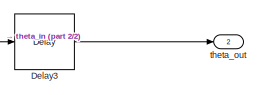
[diagram: Subsystem9 - part 1/2, top center region]
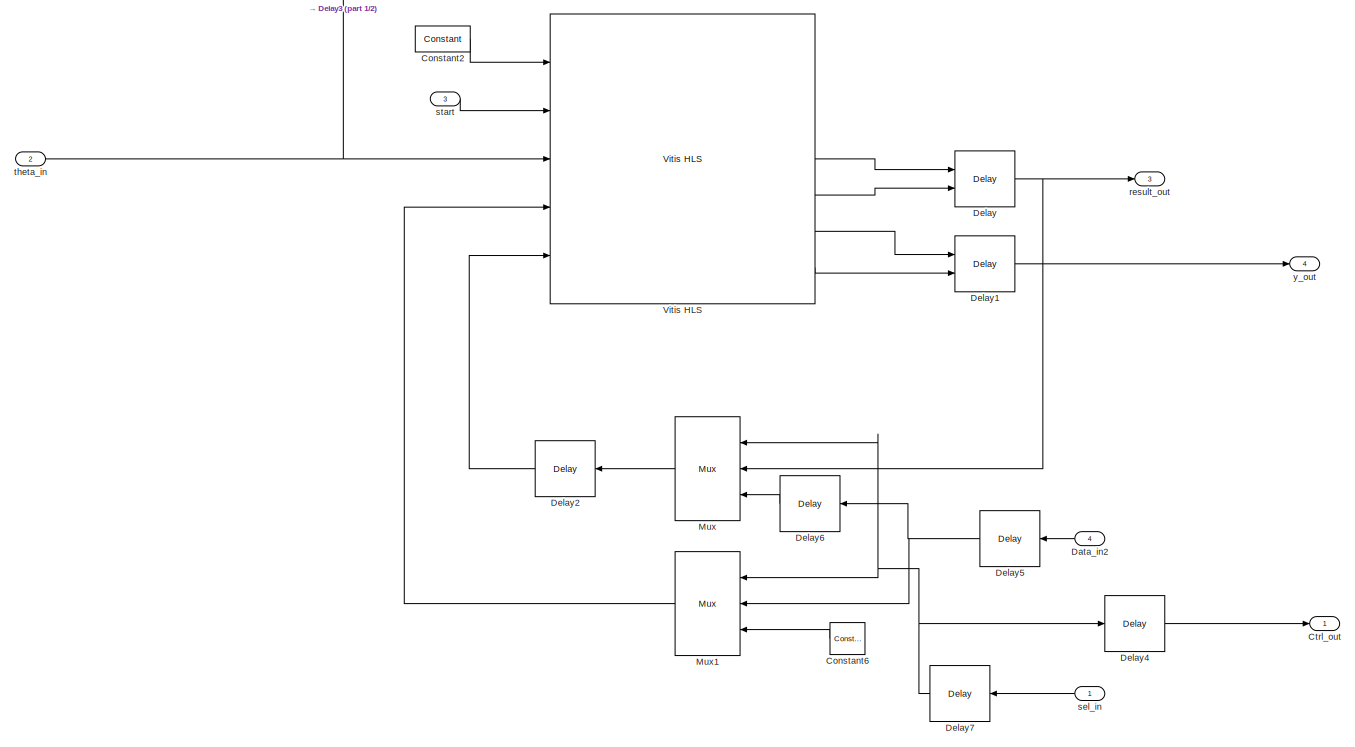
[diagram: Subsystem9 - part 2/2, most of the canvas]
BLOCK [SubSystem] Subsystem9
  Ports = [4, 4]
  RequestExecContextInheritance = off
BLOCK [Reference] Subsystem9/Constant2  REF=hdlBasic/Constant
  Ports = [0, 1]
  SourceBlock = hdlBasic/Constant
  SourceType = Constant Block Block
BLOCK [Reference] Subsystem9/Constant6  REF=hdlBasic/Constant
  NameLocation = top
  Ports = [0, 1]
  SourceBlock = hdlBasic/Constant
  SourceType = Constant Block Block
BLOCK [Outport] Subsystem9/Ctrl_out
BLOCK [Inport] Subsystem9/Data_in2
  NameLocation = top
  Port = 4
BLOCK [Reference] Subsystem9/Delay  REF=hdlBasic/Delay
  Ports = [2, 1]
  SourceBlock = hdlBasic/Delay
  SourceType = Delay Block
BLOCK [Reference] Subsystem9/Delay1  REF=hdlBasic/Delay
  Ports = [2, 1]
  SourceBlock = hdlBasic/Delay
  SourceType = Delay Block
BLOCK [Reference] Subsystem9/Delay2  REF=hdlBasic/Delay
  NameLocation = top
  Ports = [1, 1]
  SourceBlock = hdlBasic/Delay
  SourceType = Delay Block
BLOCK [Reference] Subsystem9/Delay3  REF=hdlBasic/Delay
  Ports = [1, 1]
  SourceBlock = hdlBasic/Delay
  SourceType = Delay Block
BLOCK [Reference] Subsystem9/Delay4  REF=hdlBasic/Delay
  Ports = [1, 1]
  SourceBlock = hdlBasic/Delay
  SourceType = Delay Block
BLOCK [Reference] Subsystem9/Delay5  REF=hdlBasic/Delay
  NameLocation = top
  Ports = [1, 1]
  SourceBlock = hdlBasic/Delay
  SourceType = Delay Block
BLOCK [Reference] Subsystem9/Delay6  REF=hdlBasic/Delay
  NameLocation = top
  Ports = [1, 1]
  SourceBlock = hdlBasic/Delay
  SourceType = Delay Block
BLOCK [Reference] Subsystem9/Delay7  REF=hdlBasic/Delay
  NameLocation = top
  Ports = [1, 1]
  SourceBlock = hdlBasic/Delay
  SourceType = Delay Block
BLOCK [Reference] Subsystem9/Mux  REF=hdlBasic/Mux
  NameLocation = top
  Ports = [3, 1]
  SourceBlock = hdlBasic/Mux
  SourceType = Bus Multiplexer Block
BLOCK [Reference] Subsystem9/Mux1  REF=hdlBasic/Mux
  NameLocation = top
  Ports = [3, 1]
  SourceBlock = hdlBasic/Mux
  SourceType = Bus Multiplexer Block
BLOCK [Reference] Subsystem9/Vitis HLS  REF=hdlBasic/Vitis HLS
  Ports = [5, 7]
  SourceBlock = hdlBasic/Vitis HLS
  SourceType = Xilinx High Level Synthesis Block
BLOCK [Outport] Subsystem9/result_out
  Port = 3
BLOCK [Inport] Subsystem9/sel_in
BLOCK [Inport] Subsystem9/start
  Port = 3
BLOCK [Inport] Subsystem9/theta_in
  Port = 2
BLOCK [Outport] Subsystem9/theta_out
  Port = 2
BLOCK [Outport] Subsystem9/y_out
  Port = 4
BLOCK [ToWorkspace] To Workspace
  FixptAsFi = on
  MaxDataPoints = inf
  Ports = [1]
  SampleTime = -1
  SaveFormat = Timeseries
  VariableName = y1
BLOCK [ToWorkspace] To Workspace1
  FixptAsFi = on
  MaxDataPoints = inf
  Ports = [1]
  SampleTime = -1
  SaveFormat = Timeseries
  VariableName = y2
BLOCK [ToWorkspace] To Workspace2
  FixptAsFi = on
  MaxDataPoints = inf
  Ports = [1]
  SampleTime = -1
  SaveFormat = Timeseries
  VariableName = y3
BLOCK [ToWorkspace] To Workspace3
  FixptAsFi = on
  MaxDataPoints = inf
  Ports = [1]
  SampleTime = -1
  SaveFormat = Timeseries
  VariableName = y4
BLOCK [ToWorkspace] To Workspace4
  FixptAsFi = on
  MaxDataPoints = inf
  NameLocation = top
  Ports = [1]
  SampleTime = -1
  SaveFormat = Timeseries
  VariableName = R4
BLOCK [ToWorkspace] To Workspace5
  FixptAsFi = on
  MaxDataPoints = inf
  Ports = [1]
  SampleTime = -1
  SaveFormat = Timeseries
  VariableName = done
BLOCK [ToWorkspace] To Workspace6
  FixptAsFi = on
  MaxDataPoints = inf
  NameLocation = top
  Ports = [1]
  SampleTime = -1
  SaveFormat = Timeseries
  VariableName = R3
BLOCK [ToWorkspace] To Workspace7
  FixptAsFi = on
  MaxDataPoints = inf
  NameLocation = top
  Ports = [1]
  SampleTime = -1
  SaveFormat = Timeseries
  VariableName = R2
BLOCK [ToWorkspace] To Workspace8
  FixptAsFi = on
  MaxDataPoints = inf
  NameLocation = top
  Ports = [1]
  SampleTime = -1
  SaveFormat = Timeseries
  VariableName = R1
BLOCK [Reference] ctrl_input  REF=hdlBasic/Gateway In
  Ports = [1, 1]
  SourceBlock = hdlBasic/Gateway In
  SourceType = Gateway In Block
BLOCK [Reference] done  REF=hdlBasic/Gateway Out
  Ports = [1, 1]
  SourceBlock = hdlBasic/Gateway Out
  SourceType = Gateway Out Block
BLOCK [Reference] matrix_b_input  REF=hdlBasic/Gateway In
  NameLocation = left
  Ports = [1, 1]
  SourceBlock = hdlBasic/Gateway In
  SourceType = Gateway In Block
BLOCK [Reference] mfq1  REF=hdlBasic/Gateway In
  NameLocation = left
  Ports = [1, 1]
  SourceBlock = hdlBasic/Gateway In
  SourceType = Gateway In Block
BLOCK [Reference] mfq2  REF=hdlBasic/Gateway In
  NameLocation = left
  Ports = [1, 1]
  SourceBlock = hdlBasic/Gateway In
  SourceType = Gateway In Block
BLOCK [Reference] mfq3  REF=hdlBasic/Gateway In
  NameLocation = left
  Ports = [1, 1]
  SourceBlock = hdlBasic/Gateway In
  SourceType = Gateway In Block
BLOCK [Reference] mfq4  REF=hdlBasic/Gateway In
  NameLocation = left
  Ports = [1, 1]
  SourceBlock = hdlBasic/Gateway In
  SourceType = Gateway In Block
BLOCK [Reference] r1out  REF=hdlBasic/Gateway Out
  NameLocation = top
  Ports = [1, 1]
  SourceBlock = hdlBasic/Gateway Out
  SourceType = Gateway Out Block
BLOCK [Reference] r2out  REF=hdlBasic/Gateway Out
  NameLocation = top
  Ports = [1, 1]
  SourceBlock = hdlBasic/Gateway Out
  SourceType = Gateway Out Block
BLOCK [Reference] r3out  REF=hdlBasic/Gateway Out
  NameLocation = top
  Ports = [1, 1]
  SourceBlock = hdlBasic/Gateway Out
  SourceType = Gateway Out Block
BLOCK [Reference] r4out  REF=hdlBasic/Gateway Out
  NameLocation = top
  Ports = [1, 1]
  SourceBlock = hdlBasic/Gateway Out
  SourceType = Gateway Out Block
BLOCK [Reference] row1a  REF=hdlBasic/Gateway In
  NameLocation = left
  Ports = [1, 1]
  SourceBlock = hdlBasic/Gateway In
  SourceType = Gateway In Block
BLOCK [Reference] row2a  REF=hdlBasic/Gateway In
  NameLocation = left
  Ports = [1, 1]
  SourceBlock = hdlBasic/Gateway In
  SourceType = Gateway In Block
BLOCK [Reference] row3a  REF=hdlBasic/Gateway In
  NameLocation = left
  Ports = [1, 1]
  SourceBlock = hdlBasic/Gateway In
  SourceType = Gateway In Block
BLOCK [Reference] row4a  REF=hdlBasic/Gateway In
  NameLocation = left
  Ports = [1, 1]
  SourceBlock = hdlBasic/Gateway In
  SourceType = Gateway In Block
BLOCK [Reference] start  REF=hdlBasic/Gateway In
  NameLocation = left
  Ports = [1, 1]
  SourceBlock = hdlBasic/Gateway In
  SourceType = Gateway In Block
BLOCK [Reference] y1output  REF=hdlBasic/Gateway Out
  Ports = [1, 1]
  SourceBlock = hdlBasic/Gateway Out
  SourceType = Gateway Out Block
BLOCK [Reference] y2out  REF=hdlBasic/Gateway Out
  Ports = [1, 1]
  SourceBlock = hdlBasic/Gateway Out
  SourceType = Gateway Out Block
BLOCK [Reference] yout3  REF=hdlBasic/Gateway Out
  Ports = [1, 1]
  SourceBlock = hdlBasic/Gateway Out
  SourceType = Gateway Out Block
BLOCK [Reference] yout4  REF=hdlBasic/Gateway Out
  Ports = [1, 1]
  SourceBlock = hdlBasic/Gateway Out
  SourceType = Gateway Out Block
LINE Constant1:1 -> start:1
NET Constant:1 -> Mux6:2, Mux7:2, Mux7:3, Mux8:2, Mux8:3, Mux8:4
NET Counter:1 -> Delay1:1, Delay2:1, Delay3:1, Delay4:1, Delay9:1, Mux3:1, Mux4:1, Mux5:1
LINE Delay10:1 -> y2out:1
LINE Delay11:1 -> yout3:1
LINE Delay12:1 -> r1out:1
LINE Delay13:1 -> Subsystem23:2
LINE Delay14:1 -> r2out:1
LINE Delay15:1 -> r3out:1
LINE Delay16:1 -> r4out:1
LINE Delay17:1 -> done:1
LINE Delay1:1 -> Mux7:1
LINE Delay2:1 -> Mux6:1
LINE Delay3:1 -> Mux8:1
LINE Delay4:1 -> Mux2:1
LINE Delay5:1 -> Subsystem22:1
LINE Delay6:1 -> Subsystem23:1
LINE Delay7:1 -> Subsystem24:1
LINE Delay8:1 -> y1output:1
LINE Delay9:1 -> Mux1:1
LINE From Workspace1:1 -> row1a:1
LINE From Workspace2:1 -> row2a:1
LINE From Workspace3:1 -> row3a:1
LINE From Workspace4:1 -> row4a:1
LINE From Workspace5:1 -> mfq1:1
LINE From Workspace6:1 -> mfq2:1
LINE From Workspace7:1 -> mfq3:1
LINE From Workspace8:1 -> mfq4:1
LINE From Workspace9:1 -> matrix_b_input:1
LINE From Workspace:1 -> ctrl_input:1
LINE Mux1:1 -> Delay6:1
LINE Mux2:1 -> Delay7:1
LINE Mux3:1 -> Subsystem21:1
LINE Mux4:1 -> Delay5:1
LINE Mux5:1 -> Delay12:1
LINE Mux6:1 -> Delay14:1
LINE Mux7:1 -> Delay15:1
LINE Mux8:1 -> Delay16:1
LINE Subsystem/Constant1:1 -> Subsystem/Vitis HLS:1
LINE Subsystem/Constant3:1 -> Subsystem/Mux1:3
LINE Subsystem/Delay1:1 -> Subsystem/Mux:2
LINE Subsystem/Delay2:1 -> Subsystem/Vitis HLS:3
LINE Subsystem/Delay3:1 -> Subsystem/Ctrl_out:1
LINE Subsystem/Delay4:1 -> Subsystem/atan_out1:1
LINE Subsystem/Delay5:1 -> Subsystem/Delay6:1
LINE Subsystem/Delay6:1 -> Subsystem/R_out:1
LINE Subsystem/Mux1:1 -> Subsystem/Vitis HLS:4
LINE Subsystem/Mux:1 -> Subsystem/Delay2:1
NET Subsystem/SIgnal_ctrl:1 -> Subsystem/Delay3:1, Subsystem/Mux1:1, Subsystem/Mux:1
NET Subsystem/Signal_input1:1 -> Subsystem/Mux1:2, Subsystem/Mux:3
LINE Subsystem/Vitis HLS:4 -> Subsystem/Delay4:1
LINE Subsystem/Vitis HLS:5 -> Subsystem/Delay4:2
NET Subsystem/Vitis HLS:6 -> Subsystem/Delay1:1, Subsystem/Delay5:1
LINE Subsystem/Vitis HLS:7 -> Subsystem/Delay5:2
LINE Subsystem/start:1 -> Subsystem/Vitis HLS:2
LINE Subsystem1/Constant2:1 -> Subsystem1/Vitis HLS:1
LINE Subsystem1/Constant6:1 -> Subsystem1/Mux1:3
NET Subsystem1/Data_in2:1 -> Subsystem1/Mux1:2, Subsystem1/Mux:3
LINE Subsystem1/Delay1:1 -> Subsystem1/y_out:1
LINE Subsystem1/Delay2:1 -> Subsystem1/Vitis HLS:5
LINE Subsystem1/Delay3:1 -> Subsystem1/theta_out:1
LINE Subsystem1/Delay4:1 -> Subsystem1/Ctrl_out:1
NET Subsystem1/Delay:1 -> Subsystem1/Mux:2, Subsystem1/result_out:1
LINE Subsystem1/Mux1:1 -> Subsystem1/Vitis HLS:4
LINE Subsystem1/Mux:1 -> Subsystem1/Delay2:1
LINE Subsystem1/Vitis HLS:4 -> Subsystem1/Delay:1
LINE Subsystem1/Vitis HLS:5 -> Subsystem1/Delay:2
LINE Subsystem1/Vitis HLS:6 -> Subsystem1/Delay1:1
LINE Subsystem1/Vitis HLS:7 -> Subsystem1/Delay1:2
NET Subsystem1/sel_in:1 -> Subsystem1/Delay4:1, Subsystem1/Mux1:1, Subsystem1/Mux:1
LINE Subsystem1/start:1 -> Subsystem1/Vitis HLS:2
NET Subsystem1/theta_in:1 -> Subsystem1/Delay3:1, Subsystem1/Vitis HLS:3
LINE Subsystem10/Constant2:1 -> Subsystem10/Vitis HLS:1
LINE Subsystem10/Constant6:1 -> Subsystem10/Mux1:3
LINE Subsystem10/Data_in2:1 -> Subsystem10/Delay5:1
LINE Subsystem10/Delay1:1 -> Subsystem10/y_out:1
LINE Subsystem10/Delay2:1 -> Subsystem10/Vitis HLS:5
LINE Subsystem10/Delay3:1 -> Subsystem10/theta_out:1
LINE Subsystem10/Delay4:1 -> Subsystem10/Ctrl_out:1
NET Subsystem10/Delay5:1 -> Subsystem10/Delay6:1, Subsystem10/Mux1:2
LINE Subsystem10/Delay6:1 -> Subsystem10/Mux:3
NET Subsystem10/Delay:1 -> Subsystem10/Mux:2, Subsystem10/result_out:1
LINE Subsystem10/Mux1:1 -> Subsystem10/Vitis HLS:4
LINE Subsystem10/Mux:1 -> Subsystem10/Delay2:1
LINE Subsystem10/Vitis HLS:4 -> Subsystem10/Delay:1
LINE Subsystem10/Vitis HLS:5 -> Subsystem10/Delay:2
LINE Subsystem10/Vitis HLS:6 -> Subsystem10/Delay1:1
LINE Subsystem10/Vitis HLS:7 -> Subsystem10/Delay1:2
NET Subsystem10/sel_in:1 -> Subsystem10/Delay4:1, Subsystem10/Mux1:1, Subsystem10/Mux:1
LINE Subsystem10/start:1 -> Subsystem10/Vitis HLS:2
NET Subsystem10/theta_in:1 -> Subsystem10/Delay3:1, Subsystem10/Vitis HLS:3
LINE Subsystem10:1 -> Subsystem11:1
LINE Subsystem10:2 -> Subsystem11:2
LINE Subsystem10:3 -> Mux6:5
LINE Subsystem10:4 -> Subsystem16:4
LINE Subsystem11/Constant2:1 -> Subsystem11/Vitis HLS:1
LINE Subsystem11/Constant6:1 -> Subsystem11/Mux1:3
LINE Subsystem11/Data_in2:1 -> Subsystem11/Delay5:1
LINE Subsystem11/Delay1:1 -> Subsystem11/y_out:1
LINE Subsystem11/Delay2:1 -> Subsystem11/Vitis HLS:5
LINE Subsystem11/Delay3:1 -> Subsystem11/theta_out:1
LINE Subsystem11/Delay4:1 -> Subsystem11/Ctrl_out:1
NET Subsystem11/Delay5:1 -> Subsystem11/Delay6:1, Subsystem11/Mux1:2
LINE Subsystem11/Delay6:1 -> Subsystem11/Mux:3
NET Subsystem11/Delay:1 -> Subsystem11/Mux:2, Subsystem11/result_out:1
LINE Subsystem11/Mux1:1 -> Subsystem11/Vitis HLS:4
LINE Subsystem11/Mux:1 -> Subsystem11/Delay2:1
LINE Subsystem11/Vitis HLS:4 -> Subsystem11/Delay:1
LINE Subsystem11/Vitis HLS:5 -> Subsystem11/Delay:2
LINE Subsystem11/Vitis HLS:6 -> Subsystem11/Delay1:1
LINE Subsystem11/Vitis HLS:7 -> Subsystem11/Delay1:2
NET Subsystem11/sel_in:1 -> Subsystem11/Delay4:1, Subsystem11/Mux1:1, Subsystem11/Mux:1
LINE Subsystem11/start:1 -> Subsystem11/Vitis HLS:2
NET Subsystem11/theta_in:1 -> Subsystem11/Delay3:1, Subsystem11/Vitis HLS:3
LINE Subsystem11:1 -> Subsystem12:1
LINE Subsystem11:2 -> Subsystem12:2
LINE Subsystem11:3 -> Mux2:2
LINE Subsystem11:4 -> Subsystem17:4
LINE Subsystem12/Constant2:1 -> Subsystem12/Vitis HLS:1
LINE Subsystem12/Constant6:1 -> Subsystem12/Mux1:3
LINE Subsystem12/Data_in2:1 -> Subsystem12/Delay5:1
LINE Subsystem12/Delay1:1 -> Subsystem12/y_out:1
LINE Subsystem12/Delay2:1 -> Subsystem12/Vitis HLS:5
LINE Subsystem12/Delay3:1 -> Subsystem12/theta_out:1
LINE Subsystem12/Delay4:1 -> Subsystem12/Ctrl_out:1
NET Subsystem12/Delay5:1 -> Subsystem12/Delay6:1, Subsystem12/Mux1:2
LINE Subsystem12/Delay6:1 -> Subsystem12/Mux:3
NET Subsystem12/Delay:1 -> Subsystem12/Mux:2, Subsystem12/result_out:1
LINE Subsystem12/Mux1:1 -> Subsystem12/Vitis HLS:4
LINE Subsystem12/Mux:1 -> Subsystem12/Delay2:1
LINE Subsystem12/Vitis HLS:4 -> Subsystem12/Delay:1
LINE Subsystem12/Vitis HLS:5 -> Subsystem12/Delay:2
LINE Subsystem12/Vitis HLS:6 -> Subsystem12/Delay1:1
LINE Subsystem12/Vitis HLS:7 -> Subsystem12/Delay1:2
NET Subsystem12/sel_in:1 -> Subsystem12/Delay4:1, Subsystem12/Mux1:1, Subsystem12/Mux:1
LINE Subsystem12/start:1 -> Subsystem12/Vitis HLS:2
NET Subsystem12/theta_in:1 -> Subsystem12/Delay3:1, Subsystem12/Vitis HLS:3
LINE Subsystem12:1 -> Subsystem13:1
LINE Subsystem12:2 -> Subsystem13:2
LINE Subsystem12:3 -> Mux2:3
LINE Subsystem12:4 -> Subsystem18:4
LINE Subsystem13/Constant2:1 -> Subsystem13/Vitis HLS:1
LINE Subsystem13/Constant6:1 -> Subsystem13/Mux1:3
LINE Subsystem13/Data_in2:1 -> Subsystem13/Delay5:1
LINE Subsystem13/Delay1:1 -> Subsystem13/y_out:1
LINE Subsystem13/Delay2:1 -> Subsystem13/Vitis HLS:5
LINE Subsystem13/Delay3:1 -> Subsystem13/theta_out:1
LINE Subsystem13/Delay4:1 -> Subsystem13/Ctrl_out:1
NET Subsystem13/Delay5:1 -> Subsystem13/Delay6:1, Subsystem13/Mux1:2
LINE Subsystem13/Delay6:1 -> Subsystem13/Mux:3
NET Subsystem13/Delay:1 -> Subsystem13/Mux:2, Subsystem13/result_out:1
LINE Subsystem13/Mux1:1 -> Subsystem13/Vitis HLS:4
LINE Subsystem13/Mux:1 -> Subsystem13/Delay2:1
LINE Subsystem13/Vitis HLS:4 -> Subsystem13/Delay:1
LINE Subsystem13/Vitis HLS:5 -> Subsystem13/Delay:2
LINE Subsystem13/Vitis HLS:6 -> Subsystem13/Delay1:1
LINE Subsystem13/Vitis HLS:7 -> Subsystem13/Delay1:2
NET Subsystem13/sel_in:1 -> Subsystem13/Delay4:1, Subsystem13/Mux1:1, Subsystem13/Mux:1
LINE Subsystem13/start:1 -> Subsystem13/Vitis HLS:2
NET Subsystem13/theta_in:1 -> Subsystem13/Delay3:1, Subsystem13/Vitis HLS:3
LINE Subsystem13:1 -> Subsystem14:1
LINE Subsystem13:2 -> Subsystem14:2
LINE Subsystem13:3 -> Mux2:4
LINE Subsystem13:4 -> Subsystem19:4
LINE Subsystem14/Constant2:1 -> Subsystem14/Vitis HLS:1
LINE Subsystem14/Constant6:1 -> Subsystem14/Mux1:3
LINE Subsystem14/Data_in2:1 -> Subsystem14/Delay5:1
LINE Subsystem14/Delay1:1 -> Subsystem14/y_out:1
LINE Subsystem14/Delay2:1 -> Subsystem14/Vitis HLS:5
LINE Subsystem14/Delay3:1 -> Subsystem14/theta_out:1
LINE Subsystem14/Delay4:1 -> Subsystem14/Ctrl_out:1
NET Subsystem14/Delay5:1 -> Subsystem14/Delay6:1, Subsystem14/Mux1:2
LINE Subsystem14/Delay6:1 -> Subsystem14/Mux:3
NET Subsystem14/Delay:1 -> Subsystem14/Mux:2, Subsystem14/result_out:1
LINE Subsystem14/Mux1:1 -> Subsystem14/Vitis HLS:4
LINE Subsystem14/Mux:1 -> Subsystem14/Delay2:1
LINE Subsystem14/Vitis HLS:4 -> Subsystem14/Delay:1
LINE Subsystem14/Vitis HLS:5 -> Subsystem14/Delay:2
LINE Subsystem14/Vitis HLS:6 -> Subsystem14/Delay1:1
LINE Subsystem14/Vitis HLS:7 -> Subsystem14/Delay1:2
NET Subsystem14/sel_in:1 -> Subsystem14/Delay4:1, Subsystem14/Mux1:1, Subsystem14/Mux:1
LINE Subsystem14/start:1 -> Subsystem14/Vitis HLS:2
NET Subsystem14/theta_in:1 -> Subsystem14/Delay3:1, Subsystem14/Vitis HLS:3
LINE Subsystem14:3 -> Mux2:5
LINE Subsystem14:4 -> Subsystem20:4
LINE Subsystem15/Constant1:1 -> Subsystem15/Vitis HLS:1
LINE Subsystem15/Constant3:1 -> Subsystem15/Mux1:3
LINE Subsystem15/Delay1:1 -> Subsystem15/Mux:2
LINE Subsystem15/Delay2:1 -> Subsystem15/Vitis HLS:3
LINE Subsystem15/Delay3:1 -> Subsystem15/Ctrl_out:1
LINE Subsystem15/Delay4:1 -> Subsystem15/atan_out1:1
LINE Subsystem15/Delay5:1 -> Subsystem15/Delay8:1
LINE Subsystem15/Delay6:1 -> Subsystem15/Mux:3
NET Subsystem15/Delay7:1 -> Subsystem15/Delay3:1, Subsystem15/Mux1:1, Subsystem15/Mux:1
LINE Subsystem15/Delay8:1 -> Subsystem15/R_out:1
LINE Subsystem15/Mux1:1 -> Subsystem15/Vitis HLS:4
LINE Subsystem15/Mux:1 -> Subsystem15/Delay2:1
LINE Subsystem15/SIgnal_ctrl:1 -> Subsystem15/Delay7:1
NET Subsystem15/Signal_input1:1 -> Subsystem15/Delay6:1, Subsystem15/Mux1:2
LINE Subsystem15/Vitis HLS:4 -> Subsystem15/Delay4:1
LINE Subsystem15/Vitis HLS:5 -> Subsystem15/Delay4:2
NET Subsystem15/Vitis HLS:6 -> Subsystem15/Delay1:1, Subsystem15/Delay5:1
LINE Subsystem15/Vitis HLS:7 -> Subsystem15/Delay5:2
LINE Subsystem15/start:1 -> Subsystem15/Vitis HLS:2
LINE Subsystem15:1 -> Subsystem16:1
LINE Subsystem15:2 -> Subsystem16:2
LINE Subsystem15:3 -> Mux7:4
LINE Subsystem16/Constant2:1 -> Subsystem16/Vitis HLS:1
LINE Subsystem16/Constant6:1 -> Subsystem16/Mux1:3
LINE Subsystem16/Data_in2:1 -> Subsystem16/Delay5:1
LINE Subsystem16/Delay1:1 -> Subsystem16/y_out:1
LINE Subsystem16/Delay2:1 -> Subsystem16/Vitis HLS:5
LINE Subsystem16/Delay3:1 -> Subsystem16/theta_out:1
LINE Subsystem16/Delay4:1 -> Subsystem16/Ctrl_out:1
NET Subsystem16/Delay5:1 -> Subsystem16/Delay6:1, Subsystem16/Mux1:2
LINE Subsystem16/Delay6:1 -> Subsystem16/Mux:3
NET Subsystem16/Delay:1 -> Subsystem16/Mux:2, Subsystem16/result_out:1
LINE Subsystem16/Mux1:1 -> Subsystem16/Vitis HLS:4
LINE Subsystem16/Mux:1 -> Subsystem16/Delay2:1
LINE Subsystem16/Vitis HLS:4 -> Subsystem16/Delay:1
LINE Subsystem16/Vitis HLS:5 -> Subsystem16/Delay:2
LINE Subsystem16/Vitis HLS:6 -> Subsystem16/Delay1:1
LINE Subsystem16/Vitis HLS:7 -> Subsystem16/Delay1:2
NET Subsystem16/sel_in:1 -> Subsystem16/Delay4:1, Subsystem16/Mux1:1, Subsystem16/Mux:1
LINE Subsystem16/start:1 -> Subsystem16/Vitis HLS:2
NET Subsystem16/theta_in:1 -> Subsystem16/Delay3:1, Subsystem16/Vitis HLS:3
LINE Subsystem16:1 -> Subsystem17:1
LINE Subsystem16:2 -> Subsystem17:2
LINE Subsystem16:3 -> Mux7:5
LINE Subsystem16:4 -> Mux8:5
LINE Subsystem17/Constant2:1 -> Subsystem17/Vitis HLS:1
LINE Subsystem17/Constant6:1 -> Subsystem17/Mux1:3
LINE Subsystem17/Data_in2:1 -> Subsystem17/Delay5:1
LINE Subsystem17/Delay1:1 -> Subsystem17/y_out:1
LINE Subsystem17/Delay2:1 -> Subsystem17/Vitis HLS:5
LINE Subsystem17/Delay3:1 -> Subsystem17/theta_out:1
LINE Subsystem17/Delay4:1 -> Subsystem17/Ctrl_out:1
NET Subsystem17/Delay5:1 -> Subsystem17/Delay6:1, Subsystem17/Mux1:2
LINE Subsystem17/Delay6:1 -> Subsystem17/Mux:3
NET Subsystem17/Delay:1 -> Subsystem17/Mux:2, Subsystem17/result_out:1
LINE Subsystem17/Mux1:1 -> Subsystem17/Vitis HLS:4
LINE Subsystem17/Mux:1 -> Subsystem17/Delay2:1
LINE Subsystem17/Vitis HLS:4 -> Subsystem17/Delay:1
LINE Subsystem17/Vitis HLS:5 -> Subsystem17/Delay:2
LINE Subsystem17/Vitis HLS:6 -> Subsystem17/Delay1:1
LINE Subsystem17/Vitis HLS:7 -> Subsystem17/Delay1:2
NET Subsystem17/sel_in:1 -> Subsystem17/Delay4:1, Subsystem17/Mux1:1, Subsystem17/Mux:1
LINE Subsystem17/start:1 -> Subsystem17/Vitis HLS:2
NET Subsystem17/theta_in:1 -> Subsystem17/Delay3:1, Subsystem17/Vitis HLS:3
LINE Subsystem17:1 -> Subsystem18:1
LINE Subsystem17:2 -> Subsystem18:2
LINE Subsystem17:3 -> Mux3:2
LINE Subsystem17:4 -> Mux4:2
LINE Subsystem18/Constant2:1 -> Subsystem18/Vitis HLS:1
LINE Subsystem18/Constant6:1 -> Subsystem18/Mux1:3
LINE Subsystem18/Data_in2:1 -> Subsystem18/Delay5:1
LINE Subsystem18/Delay1:1 -> Subsystem18/y_out:1
LINE Subsystem18/Delay2:1 -> Subsystem18/Vitis HLS:5
LINE Subsystem18/Delay3:1 -> Subsystem18/theta_out:1
LINE Subsystem18/Delay4:1 -> Subsystem18/Ctrl_out:1
NET Subsystem18/Delay5:1 -> Subsystem18/Delay6:1, Subsystem18/Mux1:2
LINE Subsystem18/Delay6:1 -> Subsystem18/Mux:3
NET Subsystem18/Delay:1 -> Subsystem18/Mux:2, Subsystem18/result_out:1
LINE Subsystem18/Mux1:1 -> Subsystem18/Vitis HLS:4
LINE Subsystem18/Mux:1 -> Subsystem18/Delay2:1
LINE Subsystem18/Vitis HLS:4 -> Subsystem18/Delay:1
LINE Subsystem18/Vitis HLS:5 -> Subsystem18/Delay:2
LINE Subsystem18/Vitis HLS:6 -> Subsystem18/Delay1:1
LINE Subsystem18/Vitis HLS:7 -> Subsystem18/Delay1:2
NET Subsystem18/sel_in:1 -> Subsystem18/Delay4:1, Subsystem18/Mux1:1, Subsystem18/Mux:1
LINE Subsystem18/start:1 -> Subsystem18/Vitis HLS:2
NET Subsystem18/theta_in:1 -> Subsystem18/Delay3:1, Subsystem18/Vitis HLS:3
LINE Subsystem18:1 -> Subsystem19:1
LINE Subsystem18:2 -> Subsystem19:2
LINE Subsystem18:3 -> Mux3:3
LINE Subsystem18:4 -> Mux4:3
LINE Subsystem19/Constant2:1 -> Subsystem19/Vitis HLS:1
LINE Subsystem19/Constant6:1 -> Subsystem19/Mux1:3
LINE Subsystem19/Data_in2:1 -> Subsystem19/Delay5:1
LINE Subsystem19/Delay1:1 -> Subsystem19/y_out:1
LINE Subsystem19/Delay2:1 -> Subsystem19/Vitis HLS:5
LINE Subsystem19/Delay3:1 -> Subsystem19/theta_out:1
LINE Subsystem19/Delay4:1 -> Subsystem19/Ctrl_out:1
NET Subsystem19/Delay5:1 -> Subsystem19/Delay6:1, Subsystem19/Mux1:2
LINE Subsystem19/Delay6:1 -> Subsystem19/Mux:3
NET Subsystem19/Delay:1 -> Subsystem19/Mux:2, Subsystem19/result_out:1
LINE Subsystem19/Mux1:1 -> Subsystem19/Vitis HLS:4
LINE Subsystem19/Mux:1 -> Subsystem19/Delay2:1
LINE Subsystem19/Vitis HLS:4 -> Subsystem19/Delay:1
LINE Subsystem19/Vitis HLS:5 -> Subsystem19/Delay:2
LINE Subsystem19/Vitis HLS:6 -> Subsystem19/Delay1:1
LINE Subsystem19/Vitis HLS:7 -> Subsystem19/Delay1:2
NET Subsystem19/sel_in:1 -> Subsystem19/Delay4:1, Subsystem19/Mux1:1, Subsystem19/Mux:1
LINE Subsystem19/start:1 -> Subsystem19/Vitis HLS:2
NET Subsystem19/theta_in:1 -> Subsystem19/Delay3:1, Subsystem19/Vitis HLS:3
LINE Subsystem19:1 -> Subsystem20:1
LINE Subsystem19:2 -> Subsystem20:2
LINE Subsystem19:3 -> Mux3:4
LINE Subsystem19:4 -> Mux4:4
LINE Subsystem1:1 -> Subsystem2:1
LINE Subsystem1:2 -> Subsystem2:2
LINE Subsystem1:3 -> Mux5:3
LINE Subsystem1:4 -> Subsystem8:2
LINE Subsystem2/Constant2:1 -> Subsystem2/Vitis HLS:1
LINE Subsystem2/Constant6:1 -> Subsystem2/Mux1:3
NET Subsystem2/Data_in2:1 -> Subsystem2/Mux1:2, Subsystem2/Mux:3
LINE Subsystem2/Delay1:1 -> Subsystem2/y_out:1
LINE Subsystem2/Delay2:1 -> Subsystem2/Vitis HLS:5
LINE Subsystem2/Delay3:1 -> Subsystem2/theta_out:1
LINE Subsystem2/Delay4:1 -> Subsystem2/Ctrl_out:1
NET Subsystem2/Delay:1 -> Subsystem2/Mux:2, Subsystem2/result_out:1
LINE Subsystem2/Mux1:1 -> Subsystem2/Vitis HLS:4
LINE Subsystem2/Mux:1 -> Subsystem2/Delay2:1
LINE Subsystem2/Vitis HLS:4 -> Subsystem2/Delay:1
LINE Subsystem2/Vitis HLS:5 -> Subsystem2/Delay:2
LINE Subsystem2/Vitis HLS:6 -> Subsystem2/Delay1:1
LINE Subsystem2/Vitis HLS:7 -> Subsystem2/Delay1:2
NET Subsystem2/sel_in:1 -> Subsystem2/Delay4:1, Subsystem2/Mux1:1, Subsystem2/Mux:1
LINE Subsystem2/start:1 -> Subsystem2/Vitis HLS:2
NET Subsystem2/theta_in:1 -> Subsystem2/Delay3:1, Subsystem2/Vitis HLS:3
LINE Subsystem20/Constant2:1 -> Subsystem20/Vitis HLS:1
LINE Subsystem20/Constant6:1 -> Subsystem20/Mux1:3
LINE Subsystem20/Data_in2:1 -> Subsystem20/Delay5:1
LINE Subsystem20/Delay1:1 -> Subsystem20/y_out:1
LINE Subsystem20/Delay2:1 -> Subsystem20/Vitis HLS:5
LINE Subsystem20/Delay3:1 -> Subsystem20/theta_out:1
LINE Subsystem20/Delay4:1 -> Subsystem20/Ctrl_out:1
NET Subsystem20/Delay5:1 -> Subsystem20/Delay6:1, Subsystem20/Mux1:2
LINE Subsystem20/Delay6:1 -> Subsystem20/Mux:3
NET Subsystem20/Delay:1 -> Subsystem20/Mux:2, Subsystem20/result_out:1
LINE Subsystem20/Mux1:1 -> Subsystem20/Vitis HLS:4
LINE Subsystem20/Mux:1 -> Subsystem20/Delay2:1
LINE Subsystem20/Vitis HLS:4 -> Subsystem20/Delay:1
LINE Subsystem20/Vitis HLS:5 -> Subsystem20/Delay:2
LINE Subsystem20/Vitis HLS:6 -> Subsystem20/Delay1:1
LINE Subsystem20/Vitis HLS:7 -> Subsystem20/Delay1:2
NET Subsystem20/sel_in:1 -> Subsystem20/Delay4:1, Subsystem20/Mux1:1, Subsystem20/Mux:1
LINE Subsystem20/start:1 -> Subsystem20/Vitis HLS:2
NET Subsystem20/theta_in:1 -> Subsystem20/Delay3:1, Subsystem20/Vitis HLS:3
LINE Subsystem20:3 -> Mux3:5
LINE Subsystem20:4 -> Mux4:5
LINE Subsystem21/AddSub1:1 -> Subsystem21/AddSub2:2
LINE Subsystem21/AddSub2:1 -> Subsystem21/Result_out:1
LINE Subsystem21/AddSub:1 -> Subsystem21/AddSub1:2
LINE Subsystem21/Delay1:1 -> Subsystem21/Output_2:1
NET Subsystem21/Delay2:1 -> Subsystem21/AddSub:1, Subsystem21/Delay4:1
LINE Subsystem21/Delay3:1 -> Subsystem21/AddSub2:1
NET Subsystem21/Delay4:1 -> Subsystem21/AddSub1:1, Subsystem21/Delay3:1
LINE Subsystem21/Delay:1 -> Subsystem21/Output_1:1
NET Subsystem21/Input_1:1 -> Subsystem21/Delay:1, Subsystem21/Mult:1
NET Subsystem21/Input_2:1 -> Subsystem21/Delay1:1, Subsystem21/Mult:2
NET Subsystem21/Mult:1 -> Subsystem21/AddSub:2, Subsystem21/Delay2:1
LINE Subsystem21:2 -> Delay11:1
LINE Subsystem21:3 -> Subsystem22:2
LINE Subsystem22/AddSub1:1 -> Subsystem22/AddSub3:2
LINE Subsystem22/AddSub3:1 -> Subsystem22/Result_out:1
LINE Subsystem22/AddSub:1 -> Subsystem22/AddSub1:2
LINE Subsystem22/Delay1:1 -> Subsystem22/Output_2:1
NET Subsystem22/Delay2:1 -> Subsystem22/AddSub:1, Subsystem22/Delay4:1
NET Subsystem22/Delay4:1 -> Subsystem22/AddSub1:1, Subsystem22/Delay6:1
LINE Subsystem22/Delay6:1 -> Subsystem22/AddSub3:1
LINE Subsystem22/Delay:1 -> Subsystem22/Output_1:1
NET Subsystem22/Input_1:1 -> Subsystem22/Delay:1, Subsystem22/Mult:1
NET Subsystem22/Input_2:1 -> Subsystem22/Delay1:1, Subsystem22/Mult:2
NET Subsystem22/Mult:1 -> Subsystem22/AddSub:2, Subsystem22/Delay2:1
LINE Subsystem22:2 -> yout4:1
LINE Subsystem23/AddSub1:1 -> Subsystem23/AddSub2:2
LINE Subsystem23/AddSub2:1 -> Subsystem23/Result_out:1
LINE Subsystem23/AddSub:1 -> Subsystem23/AddSub1:2
LINE Subsystem23/Delay1:1 -> Subsystem23/Output_2:1
NET Subsystem23/Delay2:1 -> Subsystem23/AddSub:1, Subsystem23/Delay4:1
LINE Subsystem23/Delay3:1 -> Subsystem23/AddSub2:1
NET Subsystem23/Delay4:1 -> Subsystem23/AddSub1:1, Subsystem23/Delay3:1
LINE Subsystem23/Delay:1 -> Subsystem23/Output_1:1
NET Subsystem23/Input_1:1 -> Subsystem23/Delay:1, Subsystem23/Mult:1
NET Subsystem23/Input_2:1 -> Subsystem23/Delay1:1, Subsystem23/Mult:2
NET Subsystem23/Mult:1 -> Subsystem23/AddSub:2, Subsystem23/Delay2:1
LINE Subsystem23:2 -> Delay8:1
LINE Subsystem23:3 -> Subsystem24:2
LINE Subsystem24/AddSub1:1 -> Subsystem24/AddSub2:2
LINE Subsystem24/AddSub2:1 -> Subsystem24/Result_out:1
LINE Subsystem24/AddSub:1 -> Subsystem24/AddSub1:2
LINE Subsystem24/Delay1:1 -> Subsystem24/Output_2:1
NET Subsystem24/Delay2:1 -> Subsystem24/AddSub:1, Subsystem24/Delay4:1
LINE Subsystem24/Delay3:1 -> Subsystem24/AddSub2:1
NET Subsystem24/Delay4:1 -> Subsystem24/AddSub1:1, Subsystem24/Delay3:1
LINE Subsystem24/Delay:1 -> Subsystem24/Output_1:1
NET Subsystem24/Input_1:1 -> Subsystem24/Delay:1, Subsystem24/Mult:1
NET Subsystem24/Input_2:1 -> Subsystem24/Delay1:1, Subsystem24/Mult:2
NET Subsystem24/Mult:1 -> Subsystem24/AddSub:2, Subsystem24/Delay2:1
LINE Subsystem24:2 -> Delay10:1
LINE Subsystem24:3 -> Subsystem21:2
LINE Subsystem2:1 -> Subsystem3:1
LINE Subsystem2:2 -> Subsystem3:2
LINE Subsystem2:3 -> Mux5:4
LINE Subsystem2:4 -> Subsystem9:4
LINE Subsystem3/Constant2:1 -> Subsystem3/Vitis HLS:1
LINE Subsystem3/Constant6:1 -> Subsystem3/Mux1:3
NET Subsystem3/Data_in2:1 -> Subsystem3/Mux1:2, Subsystem3/Mux:3
LINE Subsystem3/Delay1:1 -> Subsystem3/y_out:1
LINE Subsystem3/Delay2:1 -> Subsystem3/Vitis HLS:5
LINE Subsystem3/Delay3:1 -> Subsystem3/theta_out:1
LINE Subsystem3/Delay4:1 -> Subsystem3/Ctrl_out:1
NET Subsystem3/Delay:1 -> Subsystem3/Mux:2, Subsystem3/result_out:1
LINE Subsystem3/Mux1:1 -> Subsystem3/Vitis HLS:4
LINE Subsystem3/Mux:1 -> Subsystem3/Delay2:1
LINE Subsystem3/Vitis HLS:4 -> Subsystem3/Delay:1
LINE Subsystem3/Vitis HLS:5 -> Subsystem3/Delay:2
LINE Subsystem3/Vitis HLS:6 -> Subsystem3/Delay1:1
LINE Subsystem3/Vitis HLS:7 -> Subsystem3/Delay1:2
NET Subsystem3/sel_in:1 -> Subsystem3/Delay4:1, Subsystem3/Mux1:1, Subsystem3/Mux:1
LINE Subsystem3/start:1 -> Subsystem3/Vitis HLS:2
NET Subsystem3/theta_in:1 -> Subsystem3/Delay3:1, Subsystem3/Vitis HLS:3
LINE Subsystem3:1 -> Subsystem4:1
LINE Subsystem3:2 -> Subsystem4:2
LINE Subsystem3:3 -> Subsystem10:4
LINE Subsystem3:4 -> Mux5:5
LINE Subsystem4/Constant2:1 -> Subsystem4/Vitis HLS:1
LINE Subsystem4/Constant6:1 -> Subsystem4/Mux1:3
NET Subsystem4/Data_in2:1 -> Subsystem4/Mux1:2, Subsystem4/Mux:3
LINE Subsystem4/Delay1:1 -> Subsystem4/y_out:1
LINE Subsystem4/Delay2:1 -> Subsystem4/Vitis HLS:5
LINE Subsystem4/Delay3:1 -> Subsystem4/theta_out:1
LINE Subsystem4/Delay4:1 -> Subsystem4/Ctrl_out:1
NET Subsystem4/Delay:1 -> Subsystem4/Mux:2, Subsystem4/result_out:1
LINE Subsystem4/Mux1:1 -> Subsystem4/Vitis HLS:4
LINE Subsystem4/Mux:1 -> Subsystem4/Delay2:1
LINE Subsystem4/Vitis HLS:4 -> Subsystem4/Delay:1
LINE Subsystem4/Vitis HLS:5 -> Subsystem4/Delay:2
LINE Subsystem4/Vitis HLS:6 -> Subsystem4/Delay1:1
LINE Subsystem4/Vitis HLS:7 -> Subsystem4/Delay1:2
NET Subsystem4/sel_in:1 -> Subsystem4/Delay4:1, Subsystem4/Mux1:1, Subsystem4/Mux:1
LINE Subsystem4/start:1 -> Subsystem4/Vitis HLS:2
NET Subsystem4/theta_in:1 -> Subsystem4/Delay3:1, Subsystem4/Vitis HLS:3
LINE Subsystem4:1 -> Subsystem5:1
LINE Subsystem4:2 -> Subsystem5:2
LINE Subsystem4:3 -> Subsystem11:4
LINE Subsystem4:4 -> Mux1:2
LINE Subsystem5/Constant2:1 -> Subsystem5/Vitis HLS:1
LINE Subsystem5/Constant6:1 -> Subsystem5/Mux1:3
NET Subsystem5/Data_in2:1 -> Subsystem5/Mux1:2, Subsystem5/Mux:3
LINE Subsystem5/Delay1:1 -> Subsystem5/y_out:1
LINE Subsystem5/Delay2:1 -> Subsystem5/Vitis HLS:5
LINE Subsystem5/Delay3:1 -> Subsystem5/theta_out:1
LINE Subsystem5/Delay4:1 -> Subsystem5/Ctrl_out:1
NET Subsystem5/Delay:1 -> Subsystem5/Mux:2, Subsystem5/result_out:1
LINE Subsystem5/Mux1:1 -> Subsystem5/Vitis HLS:4
LINE Subsystem5/Mux:1 -> Subsystem5/Delay2:1
LINE Subsystem5/Vitis HLS:4 -> Subsystem5/Delay:1
LINE Subsystem5/Vitis HLS:5 -> Subsystem5/Delay:2
LINE Subsystem5/Vitis HLS:6 -> Subsystem5/Delay1:1
LINE Subsystem5/Vitis HLS:7 -> Subsystem5/Delay1:2
NET Subsystem5/sel_in:1 -> Subsystem5/Delay4:1, Subsystem5/Mux1:1, Subsystem5/Mux:1
LINE Subsystem5/start:1 -> Subsystem5/Vitis HLS:2
NET Subsystem5/theta_in:1 -> Subsystem5/Delay3:1, Subsystem5/Vitis HLS:3
LINE Subsystem5:1 -> Subsystem6:1
LINE Subsystem5:2 -> Subsystem6:2
LINE Subsystem5:3 -> Subsystem12:4
LINE Subsystem5:4 -> Mux1:3
LINE Subsystem6/Constant2:1 -> Subsystem6/Vitis HLS:1
LINE Subsystem6/Constant6:1 -> Subsystem6/Mux1:3
NET Subsystem6/Data_in2:1 -> Subsystem6/Mux1:2, Subsystem6/Mux:3
LINE Subsystem6/Delay1:1 -> Subsystem6/y_out:1
LINE Subsystem6/Delay2:1 -> Subsystem6/Vitis HLS:5
LINE Subsystem6/Delay3:1 -> Subsystem6/theta_out:1
LINE Subsystem6/Delay4:1 -> Subsystem6/Ctrl_out:1
NET Subsystem6/Delay:1 -> Subsystem6/Mux:2, Subsystem6/result_out:1
LINE Subsystem6/Mux1:1 -> Subsystem6/Vitis HLS:4
LINE Subsystem6/Mux:1 -> Subsystem6/Delay2:1
LINE Subsystem6/Vitis HLS:4 -> Subsystem6/Delay:1
LINE Subsystem6/Vitis HLS:5 -> Subsystem6/Delay:2
LINE Subsystem6/Vitis HLS:6 -> Subsystem6/Delay1:1
LINE Subsystem6/Vitis HLS:7 -> Subsystem6/Delay1:2
NET Subsystem6/sel_in:1 -> Subsystem6/Delay4:1, Subsystem6/Mux1:1, Subsystem6/Mux:1
LINE Subsystem6/start:1 -> Subsystem6/Vitis HLS:2
NET Subsystem6/theta_in:1 -> Subsystem6/Delay3:1, Subsystem6/Vitis HLS:3
LINE Subsystem6:1 -> Subsystem7:1
LINE Subsystem6:2 -> Subsystem7:2
LINE Subsystem6:3 -> Subsystem13:4
LINE Subsystem6:4 -> Mux1:4
LINE Subsystem7/Constant2:1 -> Subsystem7/Vitis HLS:1
LINE Subsystem7/Constant6:1 -> Subsystem7/Mux1:3
NET Subsystem7/Data_in2:1 -> Subsystem7/Mux1:2, Subsystem7/Mux:3
LINE Subsystem7/Delay1:1 -> Subsystem7/y_out:1
LINE Subsystem7/Delay2:1 -> Subsystem7/Vitis HLS:5
LINE Subsystem7/Delay3:1 -> Subsystem7/theta_out:1
LINE Subsystem7/Delay4:1 -> Subsystem7/Ctrl_out:1
NET Subsystem7/Delay:1 -> Subsystem7/Mux:2, Subsystem7/result_out:1
LINE Subsystem7/Mux1:1 -> Subsystem7/Vitis HLS:4
LINE Subsystem7/Mux:1 -> Subsystem7/Delay2:1
LINE Subsystem7/Vitis HLS:4 -> Subsystem7/Delay:1
LINE Subsystem7/Vitis HLS:5 -> Subsystem7/Delay:2
LINE Subsystem7/Vitis HLS:6 -> Subsystem7/Delay1:1
LINE Subsystem7/Vitis HLS:7 -> Subsystem7/Delay1:2
NET Subsystem7/sel_in:1 -> Subsystem7/Delay4:1, Subsystem7/Mux1:1, Subsystem7/Mux:1
LINE Subsystem7/start:1 -> Subsystem7/Vitis HLS:2
NET Subsystem7/theta_in:1 -> Subsystem7/Delay3:1, Subsystem7/Vitis HLS:3
LINE Subsystem7:1 -> Mux1:5
LINE Subsystem7:3 -> Subsystem14:4
LINE Subsystem8/Constant1:1 -> Subsystem8/Vitis HLS:1
LINE Subsystem8/Constant3:1 -> Subsystem8/Mux1:3
LINE Subsystem8/Delay1:1 -> Subsystem8/Mux:2
LINE Subsystem8/Delay2:1 -> Subsystem8/Vitis HLS:3
LINE Subsystem8/Delay3:1 -> Subsystem8/Ctrl_out:1
LINE Subsystem8/Delay4:1 -> Subsystem8/atan_out1:1
LINE Subsystem8/Delay5:1 -> Subsystem8/Delay8:1
LINE Subsystem8/Delay6:1 -> Subsystem8/Mux:3
NET Subsystem8/Delay7:1 -> Subsystem8/Delay3:1, Subsystem8/Mux1:1, Subsystem8/Mux:1
LINE Subsystem8/Delay8:1 -> Subsystem8/R_out:1
LINE Subsystem8/Mux1:1 -> Subsystem8/Vitis HLS:4
LINE Subsystem8/Mux:1 -> Subsystem8/Delay2:1
LINE Subsystem8/SIgnal_ctrl:1 -> Subsystem8/Delay7:1
NET Subsystem8/Signal_input1:1 -> Subsystem8/Delay6:1, Subsystem8/Mux1:2
LINE Subsystem8/Vitis HLS:4 -> Subsystem8/Delay4:1
LINE Subsystem8/Vitis HLS:5 -> Subsystem8/Delay4:2
NET Subsystem8/Vitis HLS:6 -> Subsystem8/Delay1:1, Subsystem8/Delay5:1
LINE Subsystem8/Vitis HLS:7 -> Subsystem8/Delay5:2
LINE Subsystem8/start:1 -> Subsystem8/Vitis HLS:2
NET Subsystem8:1 -> Subsystem15:1, Subsystem9:1
LINE Subsystem8:2 -> Subsystem9:2
LINE Subsystem8:3 -> Mux6:3
LINE Subsystem9/Constant2:1 -> Subsystem9/Vitis HLS:1
LINE Subsystem9/Constant6:1 -> Subsystem9/Mux1:3
LINE Subsystem9/Data_in2:1 -> Subsystem9/Delay5:1
LINE Subsystem9/Delay1:1 -> Subsystem9/y_out:1
LINE Subsystem9/Delay2:1 -> Subsystem9/Vitis HLS:5
LINE Subsystem9/Delay3:1 -> Subsystem9/theta_out:1
LINE Subsystem9/Delay4:1 -> Subsystem9/Ctrl_out:1
NET Subsystem9/Delay5:1 -> Subsystem9/Delay6:1, Subsystem9/Mux1:2
LINE Subsystem9/Delay6:1 -> Subsystem9/Mux:3
NET Subsystem9/Delay7:1 -> Subsystem9/Delay4:1, Subsystem9/Mux1:1, Subsystem9/Mux:1
NET Subsystem9/Delay:1 -> Subsystem9/Mux:2, Subsystem9/result_out:1
LINE Subsystem9/Mux1:1 -> Subsystem9/Vitis HLS:4
LINE Subsystem9/Mux:1 -> Subsystem9/Delay2:1
LINE Subsystem9/Vitis HLS:4 -> Subsystem9/Delay:1
LINE Subsystem9/Vitis HLS:5 -> Subsystem9/Delay:2
LINE Subsystem9/Vitis HLS:6 -> Subsystem9/Delay1:1
LINE Subsystem9/Vitis HLS:7 -> Subsystem9/Delay1:2
LINE Subsystem9/sel_in:1 -> Subsystem9/Delay7:1
LINE Subsystem9/start:1 -> Subsystem9/Vitis HLS:2
NET Subsystem9/theta_in:1 -> Subsystem9/Delay3:1, Subsystem9/Vitis HLS:3
LINE Subsystem9:1 -> Subsystem10:1
LINE Subsystem9:2 -> Subsystem10:2
LINE Subsystem9:3 -> Mux6:4
LINE Subsystem9:4 -> Subsystem15:2
NET Subsystem:1 -> Subsystem1:1, Subsystem8:1
LINE Subsystem:2 -> Subsystem1:2
LINE Subsystem:3 -> Mux5:2
NET ctrl_input:1 -> Delay17:1, Subsystem:1
LINE done:1 -> To Workspace5:1
LINE matrix_b_input:1 -> Delay13:1
LINE mfq1:1 -> Subsystem4:4
LINE mfq2:1 -> Subsystem5:4
LINE mfq3:1 -> Subsystem6:4
LINE mfq4:1 -> Subsystem7:4
LINE r1out:1 -> To Workspace8:1
LINE r2out:1 -> To Workspace7:1
LINE r3out:1 -> To Workspace6:1
LINE r4out:1 -> To Workspace4:1
LINE row1a:1 -> Subsystem:2
LINE row2a:1 -> Subsystem1:4
LINE row3a:1 -> Subsystem2:4
LINE row4a:1 -> Subsystem3:4
NET start:1 -> Subsystem10:3, Subsystem11:3, Subsystem12:3, Subsystem13:3, Subsystem14:3, Subsystem15:3, Subsystem16:3, Subsystem17:3, Subsystem18:3, Subsystem19:3, Subsystem1:3, Subsystem20:3, Subsystem2:3, Subsystem3:3, Subsystem4:3, Subsystem5:3, Subsystem6:3, Subsystem7:3, Subsystem8:3, Subsystem9:3, Subsystem:3
LINE y1output:1 -> To Workspace:1
LINE y2out:1 -> To Workspace1:1
LINE yout3:1 -> To Workspace2:1
LINE yout4:1 -> To Workspace3:1
note: NET lines group one-source signal fan-out (src -> all destinations, sorted); 1:1 wires keep LINE
